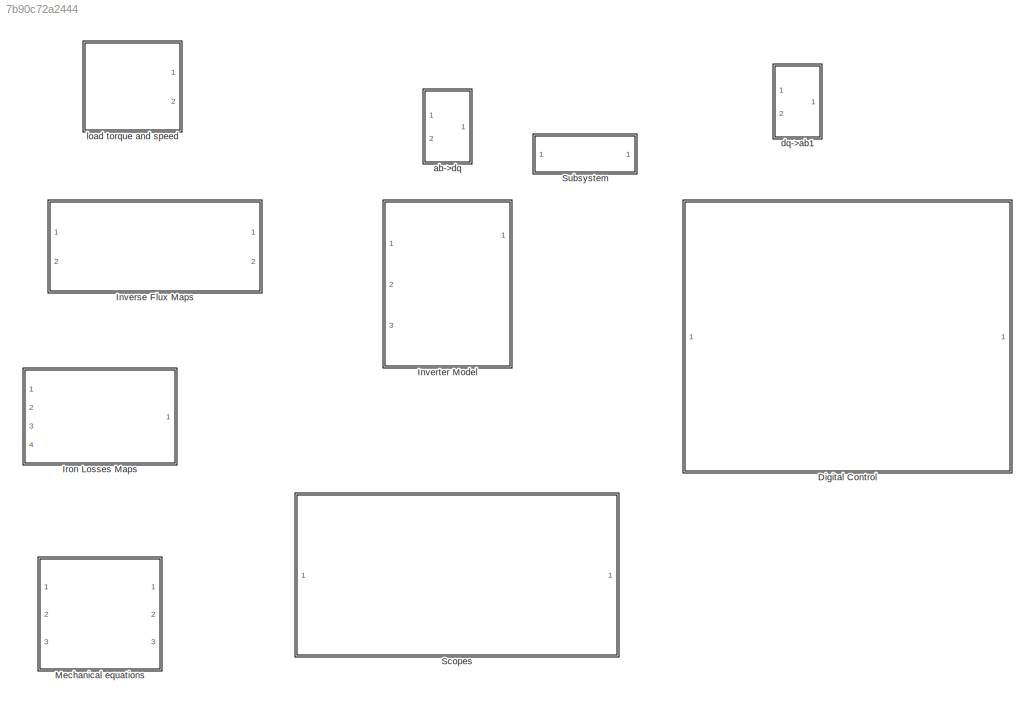
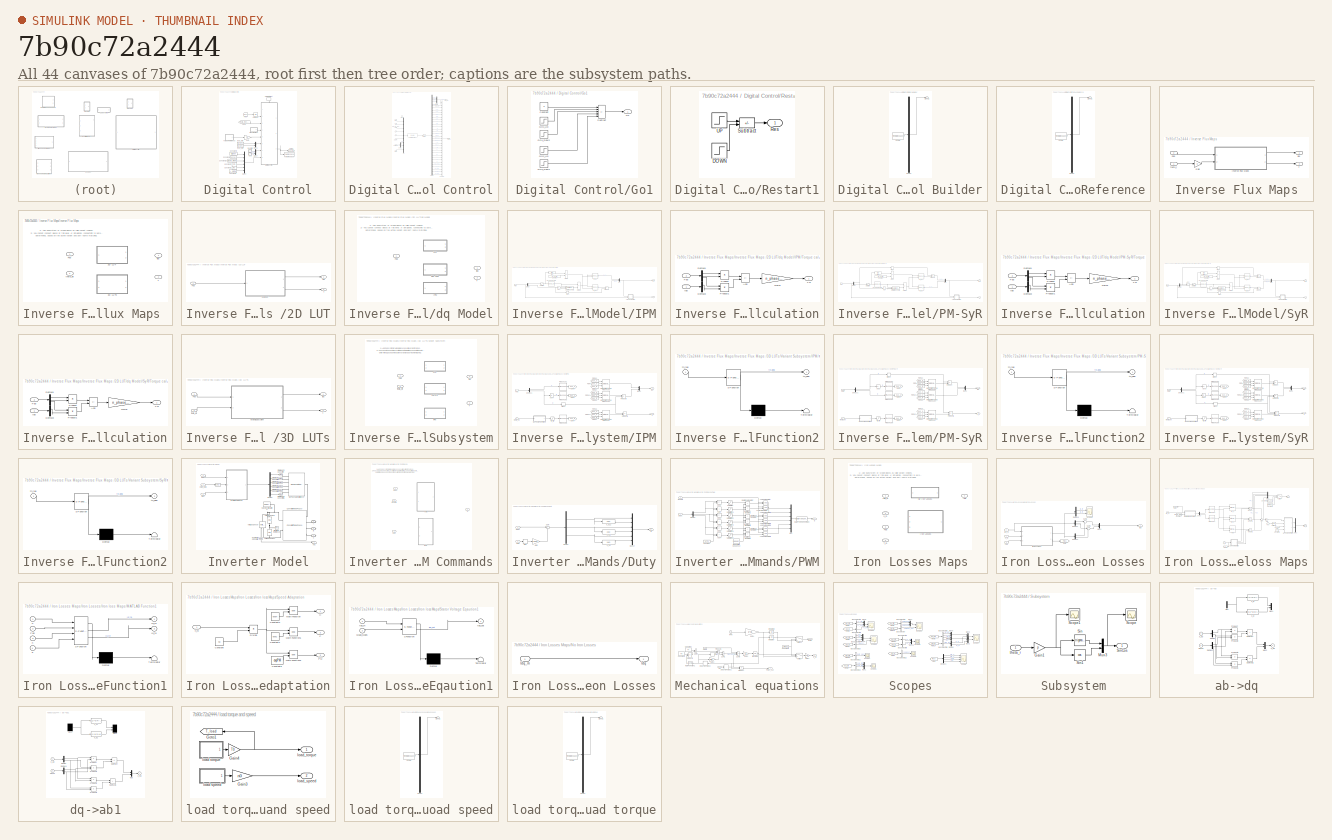
[diagram: thumbnail index - all 44 canvases of the model, root first then tree order]
MODEL slx_7b90c72a2444
KIND model
CONFIG AbsTol = auto
CONFIG EnableMultiTasking = off
CONFIG FixedStep = auto
CONFIG MaxStep = auto
CONFIG MinStep = auto
CONFIG RelTol = 1e-3
CONFIG SampleTimeConstraint = Unconstrained
CONFIG SolverName = VariableStepAuto
CONFIG StartTime = 0.0
CONFIG StopTime = 10.0
BLOCK [SubSystem] Digital Control
  Ports = []
BLOCK [Constant] Digital Control/Constant1
  Value = Fm
BLOCK [Constant] Digital Control/Constant10
  Value = Quad_Maps
BLOCK [Constant] Digital Control/Constant2
  Value = th0
BLOCK [Constant] Digital Control/Constant3
  Value = Ctrl_type
BLOCK [Constant] Digital Control/Constant4
  Value = L_sigma
BLOCK [Constant] Digital Control/Constant9
  Value = accel
BLOCK [SubSystem] Digital Control/Digital Control
  Ports = [8, 3, 0, 1]
  TreatAsAtomicUnit = on
BLOCK [BusCreator] Digital Control/Digital Control/Bus Creator
  DisplayOption = bar
  InheritFromInputs = on
  Inputs = 31
  Ports = [31, 1]
BLOCK [Inport] Digital Control/Digital Control/Commands
  Port = 7
BLOCK [S-Function] Digital Control/Digital Control/Control S-Function
  EnableBusSupport = off
  FunctionName = Motor_ctrl
  Ports = [1, 1]
  SFcnIsStateOwnerBlock = off
  SFunctionDeploymentMode = off
BLOCK [Demux] Digital Control/Digital Control/Demux1
  Outputs = 2
  Ports = [1, 2]
BLOCK [Demux] Digital Control/Digital Control/Demux2
  Outputs = 34
  Ports = [1, 34]
BLOCK [Inport] Digital Control/Digital Control/Inputs
  Port = 8
BLOCK [Mux] Digital Control/Digital Control/Mux
  DisplayOption = bar
  Inputs = 9
  Ports = [9, 1]
BLOCK [Mux] Digital Control/Digital Control/Mux1
  DisplayOption = bar
  Inputs = 3
  Ports = [3, 1]
BLOCK [Outport] Digital Control/Digital Control/Outputs
  Port = 3
BLOCK [Inport] Digital Control/Digital Control/T*
  Port = 5
BLOCK [TriggerPort] Digital Control/Digital Control/Trigger
  Ports = []
  VariantControl = (inherit)
BLOCK [UnitDelay] Digital Control/Digital Control/Unit Delay
  HasFrameUpgradeWarning = on
  NameLocation = top
  SampleTime = -1
BLOCK [Outport] Digital Control/Digital Control/duty_abc
BLOCK [Inport] Digital Control/Digital Control/iabcs
BLOCK [Inport] Digital Control/Digital Control/isdq_ref
  Port = 6
BLOCK [Inport] Digital Control/Digital Control/n*
  Port = 4
BLOCK [Outport] Digital Control/Digital Control/pwm_stop
  Port = 2
BLOCK [Inport] Digital Control/Digital Control/theta_mec_meas
  Port = 3
BLOCK [Inport] Digital Control/Digital Control/vdc
  Port = 2
BLOCK [From] Digital Control/From
  GotoTag = vdc1
BLOCK [From] Digital Control/From1
  GotoTag = theta_mec_meas
BLOCK [Gain] Digital Control/Gain
  Gain = T0
BLOCK [SubSystem] Digital Control/Go1
  Ports = [0, 1]
BLOCK [Constant] Digital Control/Go1/Constant
  Value = 0
BLOCK [Step] Digital Control/Go1/GO1_Down
  SampleTime = 0
  Time = 0.03+4*Ts
BLOCK [Step] Digital Control/Go1/GO1_Up
  SampleTime = 0
  Time = 0.03
BLOCK [Step] Digital Control/Go1/GO2_Down
  SampleTime = 0
  Time = 0.1+4*Ts
BLOCK [Step] Digital Control/Go1/GO2_Up
  SampleTime = 0
  Time = 0.1
BLOCK [Outport] Digital Control/Go1/Go
BLOCK [Sum] Digital Control/Go1/Subtract
  IconShape = rectangular
  Inputs = ++-+-
  Ports = [5, 1]
BLOCK [Goto] Digital Control/Goto5
  GotoTag = Out_Ctrl
  TagVisibility = global
BLOCK [Mux] Digital Control/Mux1
  DisplayOption = bar
  Inputs = 2
  Ports = [2, 1]
BLOCK [Mux] Digital Control/Mux7
  DisplayOption = bar
  Inputs = 2
  Ports = [2, 1]
BLOCK [Mux] Digital Control/Mux9
  DisplayOption = bar
  Inputs = 6
  Ports = [6, 1]
BLOCK [DiscretePulseGenerator] Digital Control/PWM Interrupt
  NameLocation = left
  Period = Ts
  Ports = [0, 1]
  PulseType = Time based
  PulseWidth = 50
BLOCK [SubSystem] Digital Control/Restart1
  Ports = [0, 1]
BLOCK [Step] Digital Control/Restart1/DOWN 
  SampleTime = 0
  Time = 10e-3+4*Ts
BLOCK [Outport] Digital Control/Restart1/Res
BLOCK [Sum] Digital Control/Restart1/Subtract
  IconShape = rectangular
  Inputs = +-
  Ports = [2, 1]
BLOCK [Step] Digital Control/Restart1/UP 
  SampleTime = 0
  Time = 10e-3
BLOCK [SubSystem] Digital Control/Signal Builder
  ClipboardFcn = sigbuilder_block('clipboard');
  CloseFcn = sigbuilder_block('close');
  ContinueFcn = sigbuilder_block('continue');
  CopyFcn = sigbuilder_block('copy');
  DeleteFcn = sigbuilder_block('delete');
  LoadFcn = sigbuilder_block('load');
  MaskHideContents = on
  ModelCloseFcn = sigbuilder_block('modelClose');
  NameChangeFcn = sigbuilder_block('namechange');
  OpenFcn = sigbuilder_block('open',[163.8 121.8 550.2 399.6 ]);
  PauseFcn = sigbuilder_block('pause');
  Ports = [0, 1]
  PreSaveFcn = sigbuilder_block('preSave');
  StartFcn = sigbuilder_block('start');
  StopFcn = sigbuilder_block('stop');
  Tag = STV Subsys
BLOCK [Demux] Digital Control/Signal Builder/Demux
  DisplayOption = none
  Outputs = 1
  Ports = [1, 1]
  Tag = STV Demux
BLOCK [FromWorkspace] Digital Control/Signal Builder/FromWs
  Tag = STV FromWs
  VariableName = tuvar
BLOCK [Outport] Digital Control/Signal Builder/Signal 1
  Tag = STV Outport
BLOCK [ToWorkspace] Digital Control/To Workspace
  FixptAsFi = on
  MaxDataPoints = inf
  Ports = [1]
  SampleTime = -1
  SaveFormat = Timeseries
  VariableName = Outputs
BLOCK [SubSystem] Digital Control/Torque Reference
  ClipboardFcn = sigbuilder_block('clipboard');
  CloseFcn = sigbuilder_block('close');
  ContinueFcn = sigbuilder_block('continue');
  CopyFcn = sigbuilder_block('copy');
  DeleteFcn = sigbuilder_block('delete');
  LoadFcn = sigbuilder_block('load');
  MaskHideContents = on
  ModelCloseFcn = sigbuilder_block('modelClose');
  NameChangeFcn = sigbuilder_block('namechange');
  NameLocation = top
  OpenFcn = sigbuilder_block('open',[596.4 129.6 550.2 321.6 ]);
  PauseFcn = sigbuilder_block('pause');
  Ports = [0, 1]
  PreSaveFcn = sigbuilder_block('preSave');
  StartFcn = sigbuilder_block('start');
  StopFcn = sigbuilder_block('stop');
  Tag = STV Subsys
BLOCK [Demux] Digital Control/Torque Reference/Demux
  DisplayOption = none
  Outputs = 1
  Ports = [1, 1]
  Tag = STV Demux
BLOCK [FromWorkspace] Digital Control/Torque Reference/FromWs
  Tag = STV FromWs
  VariableName = tuvar
BLOCK [Outport] Digital Control/Torque Reference/Signal 1
  Tag = STV Outport
BLOCK [UnitDelay] Digital Control/Unit Delay
  HasFrameUpgradeWarning = on
  SampleTime = -1
BLOCK [Constant] Digital Control/isdq_ref.d
  NameLocation = top
  Value = id_MTPA
BLOCK [Constant] Digital Control/isdq_ref.q
  Value = iq_MTPA
BLOCK [SubSystem] Inverse Flux Maps
  Ports = [2, 2]
BLOCK [Inport] Inverse Flux Maps/Fdq
  Port = 2
BLOCK [Gain] Inverse Flux Maps/Gain
  Gain = p
BLOCK [SubSystem] Inverse Flux Maps/Inverse Flux Maps 
  Ports = [2, 2]
  Variant = on
BLOCK [SubSystem] Inverse Flux Maps/Inverse Flux Maps /2D LUT
  Ports = [1, 2]
  VariantControl = FMapsModel==1
BLOCK [Inport] Inverse Flux Maps/Inverse Flux Maps /2D LUT/Fdq
BLOCK [Outport] Inverse Flux Maps/Inverse Flux Maps /2D LUT/T
  Port = 2
BLOCK [SubSystem] Inverse Flux Maps/Inverse Flux Maps /2D LUT/dq Model
  Ports = [1, 2]
  Variant = on
BLOCK [Inport] Inverse Flux Maps/Inverse Flux Maps /2D LUT/dq Model/Fdq
BLOCK [SubSystem] Inverse Flux Maps/Inverse Flux Maps /2D LUT/dq Model/IPM
  Ports = [1, 2]
  VariantControl = Quad_Maps==2
BLOCK [Lookup_n-D] Inverse Flux Maps/Inverse Flux Maps /2D LUT/dq Model/IPM/1-D Lookup Table
  BreakpointsForDimension1 = fD_vct_ref
  InputPortMap = u0
  InternalRulePriority = Speed
  NumberOfTableDimensions = 1
  Ports = [1, 1]
  RndMeth = Simplest
  Table = fQ_vct_max
BLOCK [Abs] Inverse Flux Maps/Inverse Flux Maps /2D LUT/dq Model/IPM/Abs1
  SaturateOnIntegerOverflow = off
BLOCK [Bias] Inverse Flux Maps/Inverse Flux Maps /2D LUT/dq Model/IPM/Bias
  Bias = -fD_vct_ref(1)
  SaturateOnIntegerOverflow = off
BLOCK [Constant] Inverse Flux Maps/Inverse Flux Maps /2D LUT/dq Model/IPM/Constant
  Value = fD_vct_ref(end)-fD_vct_ref(1)
BLOCK [Demux] Inverse Flux Maps/Inverse Flux Maps /2D LUT/dq Model/IPM/Demux
  Outputs = 2
  Ports = [1, 2]
BLOCK [Product] Inverse Flux Maps/Inverse Flux Maps /2D LUT/dq Model/IPM/Divide
  Inputs = */
  Ports = [2, 1]
BLOCK [Product] Inverse Flux Maps/Inverse Flux Maps /2D LUT/dq Model/IPM/Divide1
  Inputs = /*
  Ports = [2, 1]
BLOCK [Inport] Inverse Flux Maps/Inverse Flux Maps /2D LUT/dq Model/IPM/Fdq
BLOCK [Lookup_n-D] Inverse Flux Maps/Inverse Flux Maps /2D LUT/dq Model/IPM/Id_pu
  BreakpointsForDimension1 = fQ_pu_norm(:,1)
  BreakpointsForDimension2 = fD_pu_norm(1,:)
  InputPortMap = u0,u1
  InternalRulePriority = Speed
  Ports = [2, 1]
  RndMeth = Simplest
  Table = iD_pu_norm
BLOCK [Lookup_n-D] Inverse Flux Maps/Inverse Flux Maps /2D LUT/dq Model/IPM/Iq_pu
  BreakpointsForDimension1 = fQ_pu_norm(:,1)
  BreakpointsForDimension2 = fD_pu_norm(1,:)
  InputPortMap = u0,u1
  InternalRulePriority = Speed
  Ports = [2, 1]
  RndMeth = Simplest
  Table = iQ_pu_norm
BLOCK [Mux] Inverse Flux Maps/Inverse Flux Maps /2D LUT/dq Model/IPM/Mux
  DisplayOption = bar
  Inputs = 2
  Ports = [2, 1]
BLOCK [Product] Inverse Flux Maps/Inverse Flux Maps /2D LUT/dq Model/IPM/Product1
  Ports = [2, 1]
BLOCK [Saturate] Inverse Flux Maps/Inverse Flux Maps /2D LUT/dq Model/IPM/Saturation
  LowerLimit = fD_vct_ref(1)
  UpperLimit = fD_vct_ref(end)
BLOCK [Reference] Inverse Flux Maps/Inverse Flux Maps /2D LUT/dq Model/IPM/Saturation Dynamic  REF=simulink/Discontinuities/Saturation
Dynamic
  Ports = [3, 1]
  SourceBlock = simulink/Discontinuities/Saturation\nDynamic
  SourceType = Saturation Dynamic
BLOCK [Signum] Inverse Flux Maps/Inverse Flux Maps /2D LUT/dq Model/IPM/Sign1
BLOCK [Outport] Inverse Flux Maps/Inverse Flux Maps /2D LUT/dq Model/IPM/T
  Port = 2
BLOCK [SubSystem] Inverse Flux Maps/Inverse Flux Maps /2D LUT/dq Model/IPM/Torque calculation
  Ports = [2, 1]
BLOCK [Sum] Inverse Flux Maps/Inverse Flux Maps /2D LUT/dq Model/IPM/Torque calculation/Add
  IconShape = rectangular
  Inputs = +-
  Ports = [2, 1]
BLOCK [Demux] Inverse Flux Maps/Inverse Flux Maps /2D LUT/dq Model/IPM/Torque calculation/Demux1
  Outputs = 2
  Ports = [1, 2]
BLOCK [Demux] Inverse Flux Maps/Inverse Flux Maps /2D LUT/dq Model/IPM/Torque calculation/Demux3
  Outputs = 2
  Ports = [1, 2]
BLOCK [Inport] Inverse Flux Maps/Inverse Flux Maps /2D LUT/dq Model/IPM/Torque calculation/Fdq
  Port = 2
BLOCK [Gain] Inverse Flux Maps/Inverse Flux Maps /2D LUT/dq Model/IPM/Torque calculation/Gain2
  Gain = n_phase*0.5*p
BLOCK [Inport] Inverse Flux Maps/Inverse Flux Maps /2D LUT/dq Model/IPM/Torque calculation/Idq
BLOCK [Product] Inverse Flux Maps/Inverse Flux Maps /2D LUT/dq Model/IPM/Torque calculation/Product
  Ports = [2, 1]
BLOCK [Product] Inverse Flux Maps/Inverse Flux Maps /2D LUT/dq Model/IPM/Torque calculation/Product1
  Ports = [2, 1]
BLOCK [Outport] Inverse Flux Maps/Inverse Flux Maps /2D LUT/dq Model/IPM/Torque calculation/Tm
BLOCK [Outport] Inverse Flux Maps/Inverse Flux Maps /2D LUT/dq Model/IPM/idq
BLOCK [SubSystem] Inverse Flux Maps/Inverse Flux Maps /2D LUT/dq Model/PM-SyR
  Ports = [1, 2]
  VariantControl = Quad_Maps==1
BLOCK [Lookup_n-D] Inverse Flux Maps/Inverse Flux Maps /2D LUT/dq Model/PM-SyR/1-D Lookup Table
  BreakpointsForDimension1 = fQ_vct_ref
  InputPortMap = u0
  InternalRulePriority = Speed
  NumberOfTableDimensions = 1
  Ports = [1, 1]
  RndMeth = Simplest
  Table = fD_vct_max
BLOCK [Abs] Inverse Flux Maps/Inverse Flux Maps /2D LUT/dq Model/PM-SyR/Abs
  SaturateOnIntegerOverflow = off
BLOCK [Bias] Inverse Flux Maps/Inverse Flux Maps /2D LUT/dq Model/PM-SyR/Bias
  Bias = -fQ_vct_ref(1)
  SaturateOnIntegerOverflow = off
BLOCK [Constant] Inverse Flux Maps/Inverse Flux Maps /2D LUT/dq Model/PM-SyR/Constant
  Value = fQ_vct_ref(end)-fQ_vct_ref(1)
BLOCK [Demux] Inverse Flux Maps/Inverse Flux Maps /2D LUT/dq Model/PM-SyR/Demux
  Outputs = 2
  Ports = [1, 2]
BLOCK [Product] Inverse Flux Maps/Inverse Flux Maps /2D LUT/dq Model/PM-SyR/Divide
  Inputs = */
  Ports = [2, 1]
BLOCK [Product] Inverse Flux Maps/Inverse Flux Maps /2D LUT/dq Model/PM-SyR/Divide1
  Inputs = /*
  Ports = [2, 1]
BLOCK [Inport] Inverse Flux Maps/Inverse Flux Maps /2D LUT/dq Model/PM-SyR/Fdq
BLOCK [Lookup_n-D] Inverse Flux Maps/Inverse Flux Maps /2D LUT/dq Model/PM-SyR/Id_pu
  BreakpointsForDimension1 = fQ_pu_norm(:,1)
  BreakpointsForDimension2 = fD_pu_norm(1,:)
  InputPortMap = u0,u1
  InternalRulePriority = Speed
  Ports = [2, 1]
  RndMeth = Simplest
  Table = iD_pu_norm
BLOCK [Lookup_n-D] Inverse Flux Maps/Inverse Flux Maps /2D LUT/dq Model/PM-SyR/Iq_pu
  BreakpointsForDimension1 = fQ_pu_norm(:,1)
  BreakpointsForDimension2 = fD_pu_norm(1,:)
  InputPortMap = u0,u1
  InternalRulePriority = Speed
  Ports = [2, 1]
  RndMeth = Simplest
  Table = iQ_pu_norm
BLOCK [Mux] Inverse Flux Maps/Inverse Flux Maps /2D LUT/dq Model/PM-SyR/Mux
  DisplayOption = bar
  Inputs = 2
  Ports = [2, 1]
BLOCK [Product] Inverse Flux Maps/Inverse Flux Maps /2D LUT/dq Model/PM-SyR/Product2
  Ports = [2, 1]
BLOCK [Saturate] Inverse Flux Maps/Inverse Flux Maps /2D LUT/dq Model/PM-SyR/Saturation
  LowerLimit = fQ_vct_ref(1)
  UpperLimit = fQ_vct_ref(end)
BLOCK [Reference] Inverse Flux Maps/Inverse Flux Maps /2D LUT/dq Model/PM-SyR/Saturation Dynamic  REF=simulink/Discontinuities/Saturation
Dynamic
  Ports = [3, 1]
  SourceBlock = simulink/Discontinuities/Saturation\nDynamic
  SourceType = Saturation Dynamic
BLOCK [Signum] Inverse Flux Maps/Inverse Flux Maps /2D LUT/dq Model/PM-SyR/Sign2
BLOCK [Outport] Inverse Flux Maps/Inverse Flux Maps /2D LUT/dq Model/PM-SyR/T
  Port = 2
BLOCK [SubSystem] Inverse Flux Maps/Inverse Flux Maps /2D LUT/dq Model/PM-SyR/Torque calculation
  Ports = [2, 1]
BLOCK [Sum] Inverse Flux Maps/Inverse Flux Maps /2D LUT/dq Model/PM-SyR/Torque calculation/Add
  IconShape = rectangular
  Inputs = +-
  Ports = [2, 1]
BLOCK [Demux] Inverse Flux Maps/Inverse Flux Maps /2D LUT/dq Model/PM-SyR/Torque calculation/Demux1
  Outputs = 2
  Ports = [1, 2]
BLOCK [Demux] Inverse Flux Maps/Inverse Flux Maps /2D LUT/dq Model/PM-SyR/Torque calculation/Demux3
  Outputs = 2
  Ports = [1, 2]
BLOCK [Inport] Inverse Flux Maps/Inverse Flux Maps /2D LUT/dq Model/PM-SyR/Torque calculation/Fdq
  Port = 2
BLOCK [Gain] Inverse Flux Maps/Inverse Flux Maps /2D LUT/dq Model/PM-SyR/Torque calculation/Gain2
  Gain = n_phase*0.5*p
BLOCK [Inport] Inverse Flux Maps/Inverse Flux Maps /2D LUT/dq Model/PM-SyR/Torque calculation/Idq
BLOCK [Product] Inverse Flux Maps/Inverse Flux Maps /2D LUT/dq Model/PM-SyR/Torque calculation/Product
  Ports = [2, 1]
BLOCK [Product] Inverse Flux Maps/Inverse Flux Maps /2D LUT/dq Model/PM-SyR/Torque calculation/Product1
  Ports = [2, 1]
BLOCK [Outport] Inverse Flux Maps/Inverse Flux Maps /2D LUT/dq Model/PM-SyR/Torque calculation/Tm
BLOCK [Outport] Inverse Flux Maps/Inverse Flux Maps /2D LUT/dq Model/PM-SyR/idq
BLOCK [SubSystem] Inverse Flux Maps/Inverse Flux Maps /2D LUT/dq Model/SyR
  Ports = [1, 2]
  VariantControl = Quad_Maps==0
BLOCK [Lookup_n-D] Inverse Flux Maps/Inverse Flux Maps /2D LUT/dq Model/SyR/1-D Lookup Table
  BreakpointsForDimension1 = fD_vct_ref
  InputPortMap = u0
  InternalRulePriority = Speed
  NumberOfTableDimensions = 1
  Ports = [1, 1]
  RndMeth = Simplest
  Table = fQ_vct_max
BLOCK [Abs] Inverse Flux Maps/Inverse Flux Maps /2D LUT/dq Model/SyR/Abs1
  SaturateOnIntegerOverflow = off
BLOCK [Abs] Inverse Flux Maps/Inverse Flux Maps /2D LUT/dq Model/SyR/Abs2
  SaturateOnIntegerOverflow = off
BLOCK [Bias] Inverse Flux Maps/Inverse Flux Maps /2D LUT/dq Model/SyR/Bias
  Bias = -fD_vct_ref(1)
  SaturateOnIntegerOverflow = off
BLOCK [Constant] Inverse Flux Maps/Inverse Flux Maps /2D LUT/dq Model/SyR/Constant
  Value = fD_vct_ref(end)-fD_vct_ref(1)
BLOCK [Demux] Inverse Flux Maps/Inverse Flux Maps /2D LUT/dq Model/SyR/Demux
  Outputs = 2
  Ports = [1, 2]
BLOCK [Product] Inverse Flux Maps/Inverse Flux Maps /2D LUT/dq Model/SyR/Divide
  Inputs = */
  Ports = [2, 1]
BLOCK [Product] Inverse Flux Maps/Inverse Flux Maps /2D LUT/dq Model/SyR/Divide1
  Inputs = /*
  Ports = [2, 1]
BLOCK [Inport] Inverse Flux Maps/Inverse Flux Maps /2D LUT/dq Model/SyR/Fdq
BLOCK [Lookup_n-D] Inverse Flux Maps/Inverse Flux Maps /2D LUT/dq Model/SyR/Id_pu
  BreakpointsForDimension1 = fQ_pu_norm(:,1)
  BreakpointsForDimension2 = fD_pu_norm(1,:)
  InputPortMap = u0,u1
  InternalRulePriority = Speed
  Ports = [2, 1]
  RndMeth = Simplest
  Table = iD_pu_norm
BLOCK [Lookup_n-D] Inverse Flux Maps/Inverse Flux Maps /2D LUT/dq Model/SyR/Iq_pu
  BreakpointsForDimension1 = fQ_pu_norm(:,1)
  BreakpointsForDimension2 = fD_pu_norm(1,:)
  InputPortMap = u0,u1
  InternalRulePriority = Speed
  Ports = [2, 1]
  RndMeth = Simplest
  Table = iQ_pu_norm
BLOCK [Mux] Inverse Flux Maps/Inverse Flux Maps /2D LUT/dq Model/SyR/Mux
  DisplayOption = bar
  Inputs = 2
  Ports = [2, 1]
BLOCK [Product] Inverse Flux Maps/Inverse Flux Maps /2D LUT/dq Model/SyR/Product1
  Ports = [2, 1]
BLOCK [Product] Inverse Flux Maps/Inverse Flux Maps /2D LUT/dq Model/SyR/Product2
  Ports = [2, 1]
BLOCK [Saturate] Inverse Flux Maps/Inverse Flux Maps /2D LUT/dq Model/SyR/Saturation
  LowerLimit = fD_vct_ref(1)
  UpperLimit = fD_vct_ref(end)
BLOCK [Reference] Inverse Flux Maps/Inverse Flux Maps /2D LUT/dq Model/SyR/Saturation Dynamic  REF=simulink/Discontinuities/Saturation
Dynamic
  Ports = [3, 1]
  SourceBlock = simulink/Discontinuities/Saturation\nDynamic
  SourceType = Saturation Dynamic
BLOCK [Signum] Inverse Flux Maps/Inverse Flux Maps /2D LUT/dq Model/SyR/Sign1
BLOCK [Signum] Inverse Flux Maps/Inverse Flux Maps /2D LUT/dq Model/SyR/Sign2
BLOCK [Outport] Inverse Flux Maps/Inverse Flux Maps /2D LUT/dq Model/SyR/T
  Port = 2
BLOCK [SubSystem] Inverse Flux Maps/Inverse Flux Maps /2D LUT/dq Model/SyR/Torque calculation
  Ports = [2, 1]
BLOCK [Sum] Inverse Flux Maps/Inverse Flux Maps /2D LUT/dq Model/SyR/Torque calculation/Add
  IconShape = rectangular
  Inputs = +-
  Ports = [2, 1]
BLOCK [Demux] Inverse Flux Maps/Inverse Flux Maps /2D LUT/dq Model/SyR/Torque calculation/Demux1
  Outputs = 2
  Ports = [1, 2]
BLOCK [Demux] Inverse Flux Maps/Inverse Flux Maps /2D LUT/dq Model/SyR/Torque calculation/Demux3
  Outputs = 2
  Ports = [1, 2]
BLOCK [Inport] Inverse Flux Maps/Inverse Flux Maps /2D LUT/dq Model/SyR/Torque calculation/Fdq
  Port = 2
BLOCK [Gain] Inverse Flux Maps/Inverse Flux Maps /2D LUT/dq Model/SyR/Torque calculation/Gain2
  Gain = n_phase*0.5*p
BLOCK [Inport] Inverse Flux Maps/Inverse Flux Maps /2D LUT/dq Model/SyR/Torque calculation/Idq
BLOCK [Product] Inverse Flux Maps/Inverse Flux Maps /2D LUT/dq Model/SyR/Torque calculation/Product
  Ports = [2, 1]
BLOCK [Product] Inverse Flux Maps/Inverse Flux Maps /2D LUT/dq Model/SyR/Torque calculation/Product1
  Ports = [2, 1]
BLOCK [Outport] Inverse Flux Maps/Inverse Flux Maps /2D LUT/dq Model/SyR/Torque calculation/Tm
BLOCK [Outport] Inverse Flux Maps/Inverse Flux Maps /2D LUT/dq Model/SyR/idq
BLOCK [Outport] Inverse Flux Maps/Inverse Flux Maps /2D LUT/dq Model/T
  Port = 2
BLOCK [Outport] Inverse Flux Maps/Inverse Flux Maps /2D LUT/dq Model/idq
BLOCK [Outport] Inverse Flux Maps/Inverse Flux Maps /2D LUT/idq
BLOCK [SubSystem] Inverse Flux Maps/Inverse Flux Maps /3D LUTs
  Ports = [2, 2]
  VariantControl = FMapsModel==-1
BLOCK [Inport] Inverse Flux Maps/Inverse Flux Maps /3D LUTs/Fdq
BLOCK [Outport] Inverse Flux Maps/Inverse Flux Maps /3D LUTs/T
  Port = 2
BLOCK [SubSystem] Inverse Flux Maps/Inverse Flux Maps /3D LUTs/Variant Subsystem
  Ports = [2, 2]
  Variant = on
BLOCK [Inport] Inverse Flux Maps/Inverse Flux Maps /3D LUTs/Variant Subsystem/Fdq
BLOCK [SubSystem] Inverse Flux Maps/Inverse Flux Maps /3D LUTs/Variant Subsystem/IPM
  Ports = [2, 2]
  VariantControl = Quad_Maps==2
BLOCK [Abs] Inverse Flux Maps/Inverse Flux Maps /3D LUTs/Variant Subsystem/IPM/Abs4
  SaturateOnIntegerOverflow = off
BLOCK [Demux] Inverse Flux Maps/Inverse Flux Maps /3D LUTs/Variant Subsystem/IPM/Demux1
  Outputs = 2
  Ports = [1, 2]
BLOCK [Inport] Inverse Flux Maps/Inverse Flux Maps /3D LUTs/Variant Subsystem/IPM/Fdq
BLOCK [From] Inverse Flux Maps/Inverse Flux Maps /3D LUTs/Variant Subsystem/IPM/From
  GotoTag = bus_d
BLOCK [From] Inverse Flux Maps/Inverse Flux Maps /3D LUTs/Variant Subsystem/IPM/From10
  GotoTag = bus_d
BLOCK [From] Inverse Flux Maps/Inverse Flux Maps /3D LUTs/Variant Subsystem/IPM/From11
  GotoTag = bus_th
BLOCK [From] Inverse Flux Maps/Inverse Flux Maps /3D LUTs/Variant Subsystem/IPM/From12
  GotoTag = bus_d
BLOCK [From] Inverse Flux Maps/Inverse Flux Maps /3D LUTs/Variant Subsystem/IPM/From13
  GotoTag = bus_q
BLOCK [From] Inverse Flux Maps/Inverse Flux Maps /3D LUTs/Variant Subsystem/IPM/From14
  GotoTag = bus_q
BLOCK [From] Inverse Flux Maps/Inverse Flux Maps /3D LUTs/Variant Subsystem/IPM/From15
  GotoTag = bus_q
BLOCK [From] Inverse Flux Maps/Inverse Flux Maps /3D LUTs/Variant Subsystem/IPM/From16
  GotoTag = bus_th
BLOCK [From] Inverse Flux Maps/Inverse Flux Maps /3D LUTs/Variant Subsystem/IPM/From17
  GotoTag = bus_th
BLOCK [Goto] Inverse Flux Maps/Inverse Flux Maps /3D LUTs/Variant Subsystem/IPM/Goto3
  GotoTag = bus_q
BLOCK [Goto] Inverse Flux Maps/Inverse Flux Maps /3D LUTs/Variant Subsystem/IPM/Goto4
  GotoTag = bus_th
BLOCK [Goto] Inverse Flux Maps/Inverse Flux Maps /3D LUTs/Variant Subsystem/IPM/Goto6
  GotoTag = bus_d
BLOCK [Interpolation_n-D] Inverse Flux Maps/Inverse Flux Maps /3D LUTs/Variant Subsystem/IPM/Interpolation Using Prelookup
  InputPortMap = u0,u1,u2
  IntermediateResultsDataTypeStr = Inherit: Inherit via internal rule
  InternalRulePriority = Speed
  LookupTableObject = T_th
  NumberOfTableDimensions = 3
  Ports = [3, 1]
  RequireIndexFractionAsBus = on
  Table = T_dqt
BLOCK [Interpolation_n-D] Inverse Flux Maps/Inverse Flux Maps /3D LUTs/Variant Subsystem/IPM/Interpolation Using Prelookup3
  InputPortMap = u0,u1,u2
  IntermediateResultsDataTypeStr = Inherit: Inherit via internal rule
  InternalRulePriority = Speed
  NumberOfTableDimensions = 3
  Ports = [3, 1]
  RequireIndexFractionAsBus = on
  Table = Id_dqt
BLOCK [Interpolation_n-D] Inverse Flux Maps/Inverse Flux Maps /3D LUTs/Variant Subsystem/IPM/Interpolation Using Prelookup4
  InputPortMap = u0,u1,u2
  IntermediateResultsDataTypeStr = Inherit: Inherit via internal rule
  InternalRulePriority = Speed
  NumberOfTableDimensions = 3
  Ports = [3, 1]
  RequireIndexFractionAsBus = on
  Table = Iq_dqt
BLOCK [SubSystem] Inverse Flux Maps/Inverse Flux Maps /3D LUTs/Variant Subsystem/IPM/MATLAB Function2
  ErrorFcn = Stateflow.Translate.translate
  PermitHierarchicalResolution = ExplicitOnly
  Ports = [1, 1]
  SFBlockType = MATLAB Function
  TreatAsAtomicUnit = on
BLOCK [Demux] Inverse Flux Maps/Inverse Flux Maps /3D LUTs/Variant Subsystem/IPM/MATLAB Function2/ Demux 
  Outputs = 1
  Ports = [1, 1]
BLOCK [S-Function] Inverse Flux Maps/Inverse Flux Maps /3D LUTs/Variant Subsystem/IPM/MATLAB Function2/ SFunction 
  EnableBusSupport = off
  FunctionName = sf_sfun
  PortCounts = [1 2]
  Ports = [1, 2]
  SFcnIsStateOwnerBlock = off
  SFunctionDeploymentMode = off
  Tag = Stateflow S-Function 3
BLOCK [Terminator] Inverse Flux Maps/Inverse Flux Maps /3D LUTs/Variant Subsystem/IPM/MATLAB Function2/ Terminator 
BLOCK [Outport] Inverse Flux Maps/Inverse Flux Maps /3D LUTs/Variant Subsystem/IPM/MATLAB Function2/th_deg
BLOCK [Inport] Inverse Flux Maps/Inverse Flux Maps /3D LUTs/Variant Subsystem/IPM/MATLAB Function2/th_rad
BLOCK [Mux] Inverse Flux Maps/Inverse Flux Maps /3D LUTs/Variant Subsystem/IPM/Mux1
  DisplayOption = bar
  Inputs = 2
  Ports = [2, 1]
BLOCK [PreLookup] Inverse Flux Maps/Inverse Flux Maps /3D LUTs/Variant Subsystem/IPM/Prelookup1
  BreakpointsData = Fd_v
  ExtrapMethod = Linear
  InputPortMap = u0
  OutputSelection = Index and fraction as bus
  Ports = [1, 1]
BLOCK [PreLookup] Inverse Flux Maps/Inverse Flux Maps /3D LUTs/Variant Subsystem/IPM/Prelookup2
  BreakpointsData = Fq_v
  ExtrapMethod = Linear
  InputPortMap = u0
  OutputSelection = Index and fraction as bus
  Ports = [1, 1]
BLOCK [PreLookup] Inverse Flux Maps/Inverse Flux Maps /3D LUTs/Variant Subsystem/IPM/Prelookup6
  BreakpointsData = th_v
  ExtrapMethod = Linear
  InputPortMap = u0
  OutputSelection = Index and fraction as bus
  Ports = [1, 1]
BLOCK [Product] Inverse Flux Maps/Inverse Flux Maps /3D LUTs/Variant Subsystem/IPM/Product5
  Ports = [2, 1]
BLOCK [Product] Inverse Flux Maps/Inverse Flux Maps /3D LUTs/Variant Subsystem/IPM/Product6
  Ports = [2, 1]
BLOCK [Signum] Inverse Flux Maps/Inverse Flux Maps /3D LUTs/Variant Subsystem/IPM/Sign3
BLOCK [Outport] Inverse Flux Maps/Inverse Flux Maps /3D LUTs/Variant Subsystem/IPM/T
  Port = 2
BLOCK [Outport] Inverse Flux Maps/Inverse Flux Maps /3D LUTs/Variant Subsystem/IPM/idq
BLOCK [Saturate] Inverse Flux Maps/Inverse Flux Maps /3D LUTs/Variant Subsystem/IPM/th_lim
  LowerLimit = th_min
  UpperLimit = th_max
  ZeroCross = off
BLOCK [Inport] Inverse Flux Maps/Inverse Flux Maps /3D LUTs/Variant Subsystem/IPM/theta_elt
  NameLocation = left
  Port = 2
BLOCK [SubSystem] Inverse Flux Maps/Inverse Flux Maps /3D LUTs/Variant Subsystem/PM-SyR
  Ports = [2, 2]
  VariantControl = Quad_Maps==1
BLOCK [Abs] Inverse Flux Maps/Inverse Flux Maps /3D LUTs/Variant Subsystem/PM-SyR/Abs3
  SaturateOnIntegerOverflow = off
BLOCK [Demux] Inverse Flux Maps/Inverse Flux Maps /3D LUTs/Variant Subsystem/PM-SyR/Demux1
  Outputs = 2
  Ports = [1, 2]
BLOCK [Inport] Inverse Flux Maps/Inverse Flux Maps /3D LUTs/Variant Subsystem/PM-SyR/Fdq
BLOCK [From] Inverse Flux Maps/Inverse Flux Maps /3D LUTs/Variant Subsystem/PM-SyR/From
  GotoTag = bus_d
BLOCK [From] Inverse Flux Maps/Inverse Flux Maps /3D LUTs/Variant Subsystem/PM-SyR/From10
  GotoTag = bus_d
BLOCK [From] Inverse Flux Maps/Inverse Flux Maps /3D LUTs/Variant Subsystem/PM-SyR/From11
  GotoTag = bus_th
BLOCK [From] Inverse Flux Maps/Inverse Flux Maps /3D LUTs/Variant Subsystem/PM-SyR/From12
  GotoTag = bus_d
BLOCK [From] Inverse Flux Maps/Inverse Flux Maps /3D LUTs/Variant Subsystem/PM-SyR/From13
  GotoTag = bus_q
BLOCK [From] Inverse Flux Maps/Inverse Flux Maps /3D LUTs/Variant Subsystem/PM-SyR/From14
  GotoTag = bus_q
BLOCK [From] Inverse Flux Maps/Inverse Flux Maps /3D LUTs/Variant Subsystem/PM-SyR/From15
  GotoTag = bus_q
BLOCK [From] Inverse Flux Maps/Inverse Flux Maps /3D LUTs/Variant Subsystem/PM-SyR/From16
  GotoTag = bus_th
BLOCK [From] Inverse Flux Maps/Inverse Flux Maps /3D LUTs/Variant Subsystem/PM-SyR/From17
  GotoTag = bus_th
BLOCK [Goto] Inverse Flux Maps/Inverse Flux Maps /3D LUTs/Variant Subsystem/PM-SyR/Goto3
  GotoTag = bus_q
BLOCK [Goto] Inverse Flux Maps/Inverse Flux Maps /3D LUTs/Variant Subsystem/PM-SyR/Goto4
  GotoTag = bus_th
BLOCK [Goto] Inverse Flux Maps/Inverse Flux Maps /3D LUTs/Variant Subsystem/PM-SyR/Goto6
  GotoTag = bus_d
BLOCK [Interpolation_n-D] Inverse Flux Maps/Inverse Flux Maps /3D LUTs/Variant Subsystem/PM-SyR/Interpolation Using Prelookup
  InputPortMap = u0,u1,u2
  IntermediateResultsDataTypeStr = Inherit: Inherit via internal rule
  InternalRulePriority = Speed
  LookupTableObject = T_th
  NumberOfTableDimensions = 3
  Ports = [3, 1]
  RequireIndexFractionAsBus = on
  Table = T_dqt
BLOCK [Interpolation_n-D] Inverse Flux Maps/Inverse Flux Maps /3D LUTs/Variant Subsystem/PM-SyR/Interpolation Using Prelookup3
  InputPortMap = u0,u1,u2
  IntermediateResultsDataTypeStr = Inherit: Inherit via internal rule
  InternalRulePriority = Speed
  NumberOfTableDimensions = 3
  Ports = [3, 1]
  RequireIndexFractionAsBus = on
  Table = Id_dqt
BLOCK [Interpolation_n-D] Inverse Flux Maps/Inverse Flux Maps /3D LUTs/Variant Subsystem/PM-SyR/Interpolation Using Prelookup4
  InputPortMap = u0,u1,u2
  IntermediateResultsDataTypeStr = Inherit: Inherit via internal rule
  InternalRulePriority = Speed
  NumberOfTableDimensions = 3
  Ports = [3, 1]
  RequireIndexFractionAsBus = on
  Table = Iq_dqt
BLOCK [SubSystem] Inverse Flux Maps/Inverse Flux Maps /3D LUTs/Variant Subsystem/PM-SyR/MATLAB Function2
  ErrorFcn = Stateflow.Translate.translate
  PermitHierarchicalResolution = ExplicitOnly
  Ports = [1, 1]
  SFBlockType = MATLAB Function
  TreatAsAtomicUnit = on
BLOCK [Demux] Inverse Flux Maps/Inverse Flux Maps /3D LUTs/Variant Subsystem/PM-SyR/MATLAB Function2/ Demux 
  Outputs = 1
  Ports = [1, 1]
BLOCK [S-Function] Inverse Flux Maps/Inverse Flux Maps /3D LUTs/Variant Subsystem/PM-SyR/MATLAB Function2/ SFunction 
  EnableBusSupport = off
  FunctionName = sf_sfun
  PortCounts = [1 2]
  Ports = [1, 2]
  SFcnIsStateOwnerBlock = off
  SFunctionDeploymentMode = off
  Tag = Stateflow S-Function 1
BLOCK [Terminator] Inverse Flux Maps/Inverse Flux Maps /3D LUTs/Variant Subsystem/PM-SyR/MATLAB Function2/ Terminator 
BLOCK [Outport] Inverse Flux Maps/Inverse Flux Maps /3D LUTs/Variant Subsystem/PM-SyR/MATLAB Function2/th_deg
BLOCK [Inport] Inverse Flux Maps/Inverse Flux Maps /3D LUTs/Variant Subsystem/PM-SyR/MATLAB Function2/th_rad
BLOCK [Mux] Inverse Flux Maps/Inverse Flux Maps /3D LUTs/Variant Subsystem/PM-SyR/Mux1
  DisplayOption = bar
  Inputs = 2
  Ports = [2, 1]
BLOCK [PreLookup] Inverse Flux Maps/Inverse Flux Maps /3D LUTs/Variant Subsystem/PM-SyR/Prelookup1
  BreakpointsData = Fd_v
  ExtrapMethod = Linear
  InputPortMap = u0
  OutputSelection = Index and fraction as bus
  Ports = [1, 1]
BLOCK [PreLookup] Inverse Flux Maps/Inverse Flux Maps /3D LUTs/Variant Subsystem/PM-SyR/Prelookup2
  BreakpointsData = Fq_v
  ExtrapMethod = Linear
  InputPortMap = u0
  OutputSelection = Index and fraction as bus
  Ports = [1, 1]
BLOCK [PreLookup] Inverse Flux Maps/Inverse Flux Maps /3D LUTs/Variant Subsystem/PM-SyR/Prelookup6
  BreakpointsData = th_v
  ExtrapMethod = Linear
  InputPortMap = u0
  OutputSelection = Index and fraction as bus
  Ports = [1, 1]
BLOCK [Product] Inverse Flux Maps/Inverse Flux Maps /3D LUTs/Variant Subsystem/PM-SyR/Product
  Ports = [2, 1]
BLOCK [Product] Inverse Flux Maps/Inverse Flux Maps /3D LUTs/Variant Subsystem/PM-SyR/Product6
  Ports = [2, 1]
BLOCK [Signum] Inverse Flux Maps/Inverse Flux Maps /3D LUTs/Variant Subsystem/PM-SyR/Sign2
BLOCK [Outport] Inverse Flux Maps/Inverse Flux Maps /3D LUTs/Variant Subsystem/PM-SyR/T
  Port = 2
BLOCK [Outport] Inverse Flux Maps/Inverse Flux Maps /3D LUTs/Variant Subsystem/PM-SyR/idq
BLOCK [Saturate] Inverse Flux Maps/Inverse Flux Maps /3D LUTs/Variant Subsystem/PM-SyR/th_lim
  LowerLimit = th_min
  UpperLimit = th_max
  ZeroCross = off
BLOCK [Inport] Inverse Flux Maps/Inverse Flux Maps /3D LUTs/Variant Subsystem/PM-SyR/theta_elt
  NameLocation = left
  Port = 2
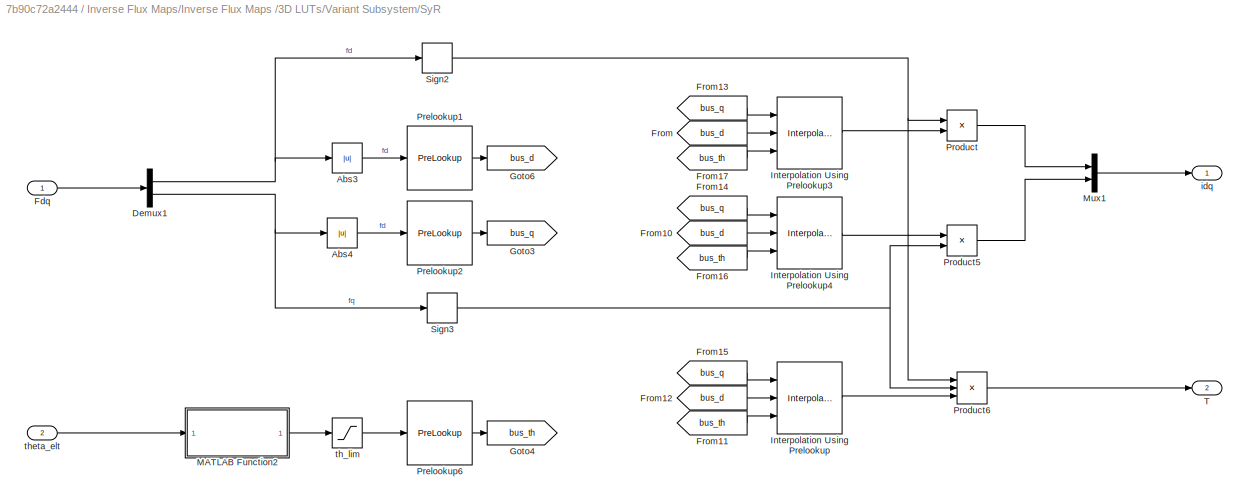
BLOCK [SubSystem] Inverse Flux Maps/Inverse Flux Maps /3D LUTs/Variant Subsystem/SyR
  Ports = [2, 2]
  VariantControl = Quad_Maps==0
BLOCK [Abs] Inverse Flux Maps/Inverse Flux Maps /3D LUTs/Variant Subsystem/SyR/Abs3
  SaturateOnIntegerOverflow = off
BLOCK [Abs] Inverse Flux Maps/Inverse Flux Maps /3D LUTs/Variant Subsystem/SyR/Abs4
  SaturateOnIntegerOverflow = off
BLOCK [Demux] Inverse Flux Maps/Inverse Flux Maps /3D LUTs/Variant Subsystem/SyR/Demux1
  Outputs = 2
  Ports = [1, 2]
BLOCK [Inport] Inverse Flux Maps/Inverse Flux Maps /3D LUTs/Variant Subsystem/SyR/Fdq
BLOCK [From] Inverse Flux Maps/Inverse Flux Maps /3D LUTs/Variant Subsystem/SyR/From
  GotoTag = bus_d
BLOCK [From] Inverse Flux Maps/Inverse Flux Maps /3D LUTs/Variant Subsystem/SyR/From10
  GotoTag = bus_d
BLOCK [From] Inverse Flux Maps/Inverse Flux Maps /3D LUTs/Variant Subsystem/SyR/From11
  GotoTag = bus_th
BLOCK [From] Inverse Flux Maps/Inverse Flux Maps /3D LUTs/Variant Subsystem/SyR/From12
  GotoTag = bus_d
BLOCK [From] Inverse Flux Maps/Inverse Flux Maps /3D LUTs/Variant Subsystem/SyR/From13
  GotoTag = bus_q
BLOCK [From] Inverse Flux Maps/Inverse Flux Maps /3D LUTs/Variant Subsystem/SyR/From14
  GotoTag = bus_q
BLOCK [From] Inverse Flux Maps/Inverse Flux Maps /3D LUTs/Variant Subsystem/SyR/From15
  GotoTag = bus_q
BLOCK [From] Inverse Flux Maps/Inverse Flux Maps /3D LUTs/Variant Subsystem/SyR/From16
  GotoTag = bus_th
BLOCK [From] Inverse Flux Maps/Inverse Flux Maps /3D LUTs/Variant Subsystem/SyR/From17
  GotoTag = bus_th
BLOCK [Goto] Inverse Flux Maps/Inverse Flux Maps /3D LUTs/Variant Subsystem/SyR/Goto3
  GotoTag = bus_q
BLOCK [Goto] Inverse Flux Maps/Inverse Flux Maps /3D LUTs/Variant Subsystem/SyR/Goto4
  GotoTag = bus_th
BLOCK [Goto] Inverse Flux Maps/Inverse Flux Maps /3D LUTs/Variant Subsystem/SyR/Goto6
  GotoTag = bus_d
BLOCK [Interpolation_n-D] Inverse Flux Maps/Inverse Flux Maps /3D LUTs/Variant Subsystem/SyR/Interpolation Using Prelookup
  InputPortMap = u0,u1,u2
  IntermediateResultsDataTypeStr = Inherit: Inherit via internal rule
  InternalRulePriority = Speed
  LookupTableObject = T_th
  NumberOfTableDimensions = 3
  Ports = [3, 1]
  RequireIndexFractionAsBus = on
  Table = T_dqt
BLOCK [Interpolation_n-D] Inverse Flux Maps/Inverse Flux Maps /3D LUTs/Variant Subsystem/SyR/Interpolation Using Prelookup3
  InputPortMap = u0,u1,u2
  IntermediateResultsDataTypeStr = Inherit: Inherit via internal rule
  InternalRulePriority = Speed
  NumberOfTableDimensions = 3
  Ports = [3, 1]
  RequireIndexFractionAsBus = on
  Table = Id_dqt
BLOCK [Interpolation_n-D] Inverse Flux Maps/Inverse Flux Maps /3D LUTs/Variant Subsystem/SyR/Interpolation Using Prelookup4
  InputPortMap = u0,u1,u2
  IntermediateResultsDataTypeStr = Inherit: Inherit via internal rule
  InternalRulePriority = Speed
  NumberOfTableDimensions = 3
  Ports = [3, 1]
  RequireIndexFractionAsBus = on
  Table = Iq_dqt
BLOCK [SubSystem] Inverse Flux Maps/Inverse Flux Maps /3D LUTs/Variant Subsystem/SyR/MATLAB Function2
  ErrorFcn = Stateflow.Translate.translate
  PermitHierarchicalResolution = ExplicitOnly
  Ports = [1, 1]
  SFBlockType = MATLAB Function
  TreatAsAtomicUnit = on
BLOCK [Demux] Inverse Flux Maps/Inverse Flux Maps /3D LUTs/Variant Subsystem/SyR/MATLAB Function2/ Demux 
  Outputs = 1
  Ports = [1, 1]
BLOCK [S-Function] Inverse Flux Maps/Inverse Flux Maps /3D LUTs/Variant Subsystem/SyR/MATLAB Function2/ SFunction 
  EnableBusSupport = off
  FunctionName = sf_sfun
  PortCounts = [1 2]
  Ports = [1, 2]
  SFcnIsStateOwnerBlock = off
  SFunctionDeploymentMode = off
  Tag = Stateflow S-Function 7
BLOCK [Terminator] Inverse Flux Maps/Inverse Flux Maps /3D LUTs/Variant Subsystem/SyR/MATLAB Function2/ Terminator 
BLOCK [Outport] Inverse Flux Maps/Inverse Flux Maps /3D LUTs/Variant Subsystem/SyR/MATLAB Function2/th_deg
BLOCK [Inport] Inverse Flux Maps/Inverse Flux Maps /3D LUTs/Variant Subsystem/SyR/MATLAB Function2/th_rad
BLOCK [Mux] Inverse Flux Maps/Inverse Flux Maps /3D LUTs/Variant Subsystem/SyR/Mux1
  DisplayOption = bar
  Inputs = 2
  Ports = [2, 1]
BLOCK [PreLookup] Inverse Flux Maps/Inverse Flux Maps /3D LUTs/Variant Subsystem/SyR/Prelookup1
  BreakpointsData = Fd_v
  ExtrapMethod = Linear
  InputPortMap = u0
  OutputSelection = Index and fraction as bus
  Ports = [1, 1]
BLOCK [PreLookup] Inverse Flux Maps/Inverse Flux Maps /3D LUTs/Variant Subsystem/SyR/Prelookup2
  BreakpointsData = Fq_v
  ExtrapMethod = Linear
  InputPortMap = u0
  OutputSelection = Index and fraction as bus
  Ports = [1, 1]
BLOCK [PreLookup] Inverse Flux Maps/Inverse Flux Maps /3D LUTs/Variant Subsystem/SyR/Prelookup6
  BreakpointsData = th_v
  ExtrapMethod = Linear
  InputPortMap = u0
  OutputSelection = Index and fraction as bus
  Ports = [1, 1]
BLOCK [Product] Inverse Flux Maps/Inverse Flux Maps /3D LUTs/Variant Subsystem/SyR/Product
  Ports = [2, 1]
BLOCK [Product] Inverse Flux Maps/Inverse Flux Maps /3D LUTs/Variant Subsystem/SyR/Product5
  Ports = [2, 1]
BLOCK [Product] Inverse Flux Maps/Inverse Flux Maps /3D LUTs/Variant Subsystem/SyR/Product6
  Inputs = 3
  Ports = [3, 1]
BLOCK [Signum] Inverse Flux Maps/Inverse Flux Maps /3D LUTs/Variant Subsystem/SyR/Sign2
BLOCK [Signum] Inverse Flux Maps/Inverse Flux Maps /3D LUTs/Variant Subsystem/SyR/Sign3
BLOCK [Outport] Inverse Flux Maps/Inverse Flux Maps /3D LUTs/Variant Subsystem/SyR/T
  Port = 2
BLOCK [Outport] Inverse Flux Maps/Inverse Flux Maps /3D LUTs/Variant Subsystem/SyR/idq
BLOCK [Saturate] Inverse Flux Maps/Inverse Flux Maps /3D LUTs/Variant Subsystem/SyR/th_lim
  LowerLimit = th_min
  UpperLimit = th_max
  ZeroCross = off
BLOCK [Inport] Inverse Flux Maps/Inverse Flux Maps /3D LUTs/Variant Subsystem/SyR/theta_elt
  NameLocation = left
  Port = 2
BLOCK [Outport] Inverse Flux Maps/Inverse Flux Maps /3D LUTs/Variant Subsystem/T
  Port = 2
BLOCK [Outport] Inverse Flux Maps/Inverse Flux Maps /3D LUTs/Variant Subsystem/idq
BLOCK [Inport] Inverse Flux Maps/Inverse Flux Maps /3D LUTs/Variant Subsystem/theta_elt
  Port = 2
BLOCK [Outport] Inverse Flux Maps/Inverse Flux Maps /3D LUTs/idq
BLOCK [Inport] Inverse Flux Maps/Inverse Flux Maps /3D LUTs/theta_elt
  Port = 2
BLOCK [Inport] Inverse Flux Maps/Inverse Flux Maps /Fdq
BLOCK [Outport] Inverse Flux Maps/Inverse Flux Maps /T
  Port = 2
BLOCK [Outport] Inverse Flux Maps/Inverse Flux Maps /idq
BLOCK [Inport] Inverse Flux Maps/Inverse Flux Maps /theta_elt
  Port = 2
BLOCK [Outport] Inverse Flux Maps/T
  Port = 2
BLOCK [Outport] Inverse Flux Maps/idq
BLOCK [Inport] Inverse Flux Maps/theta_r
BLOCK [SubSystem] Inverter Model
  Ports = [3, 1, 0, 0, 0, 0, 3]
BLOCK [Fcn] Inverter Model/ 
  Expr = 1-u(1)
  NameLocation = top
BLOCK [PMIOPort] Inverter Model/A
  Side = Right
BLOCK [PMIOPort] Inverter Model/B
  Port = 2
  Side = Right
BLOCK [PMIOPort] Inverter Model/C
  Port = 3
  Side = Right
BLOCK [Reference] Inverter Model/Converter (Three-Phase)  REF=ee_lib/Semiconductors &
Converters/Converters/Converter
(Three-Phase)
  Ports = [0, 0, 0, 0, 0, 4, 2]
  SourceBlock = ee_lib/Semiconductors &\nConverters/Converters/Converter\n(Three-Phase)
  SourceType = Converter\n(Three-Phase)
BLOCK [Inport] Inverter Model/Dabc
BLOCK [Demux] Inverter Model/Demux
  Outputs = 6
  Ports = [1, 6]
BLOCK [Reference] Inverter Model/Electrical Reference  REF=fl_lib/Electrical/Electrical Elements/Electrical Reference
  NameLocation = right
  Ports = [0, 0, 0, 0, 0, 1]
  SourceBlock = fl_lib/Electrical/Electrical Elements/Electrical Reference
  SourceType = Electrical Reference
BLOCK [Inport] Inverter Model/Iabc
  Port = 3
BLOCK [SubSystem] Inverter Model/Inverter Commands
  Ports = [3, 1]
  Variant = on
BLOCK [Inport] Inverter Model/Inverter Commands/Dabc
BLOCK [SubSystem] Inverter Model/Inverter Commands/Duty
  Ports = [2, 1]
  VariantControl = InvModel==0
BLOCK [Inport] Inverter Model/Inverter Commands/Duty/Dabc
BLOCK [Demux] Inverter Model/Inverter Commands/Duty/Demux
  Outputs = 3
  Ports = [1, 3]
BLOCK [Outport] Inverter Model/Inverter Commands/Duty/G
  NameLocation = top
  VectorParamsAs1DForOutWhenUnconnected = off
BLOCK [Gain] Inverter Model/Inverter Commands/Duty/Gain
  Gain = dT/Ts
BLOCK [Mux] Inverter Model/Inverter Commands/Duty/Mux14
  DisplayOption = bar
  Inputs = 6
  Ports = [6, 1]
BLOCK [Signum] Inverter Model/Inverter Commands/Duty/Sign
BLOCK [Sum] Inverter Model/Inverter Commands/Duty/Sum
  Inputs = |+-
  Ports = [2, 1]
BLOCK [Fcn] Inverter Model/Inverter Commands/Duty/X_d1
  Expr = 1-u(1)
BLOCK [Fcn] Inverter Model/Inverter Commands/Duty/X_d12
  Expr = 1-u(1)
BLOCK [Fcn] Inverter Model/Inverter Commands/Duty/X_d2
  Expr = 1-u(1)
BLOCK [Inport] Inverter Model/Inverter Commands/Duty/iABC
  Port = 2
BLOCK [Inport] Inverter Model/Inverter Commands/Enable
  Port = 2
BLOCK [Outport] Inverter Model/Inverter Commands/G
BLOCK [SubSystem] Inverter Model/Inverter Commands/PWM
  Ports = [2, 1]
  VariantControl = InvModel==1
BLOCK [Sum] Inverter Model/Inverter Commands/PWM/Add
  IconShape = rectangular
  Ports = [2, 1]
BLOCK [Sum] Inverter Model/Inverter Commands/PWM/Add1
  IconShape = rectangular
  Inputs = +-
  Ports = [2, 1]
BLOCK [Sum] Inverter Model/Inverter Commands/PWM/Add2
  IconShape = rectangular
  Ports = [2, 1]
BLOCK [Sum] Inverter Model/Inverter Commands/PWM/Add3
  IconShape = rectangular
  Inputs = +-
  Ports = [2, 1]
BLOCK [Sum] Inverter Model/Inverter Commands/PWM/Add4
  IconShape = rectangular
  Ports = [2, 1]
BLOCK [Sum] Inverter Model/Inverter Commands/PWM/Add5
  IconShape = rectangular
  Inputs = +-
  Ports = [2, 1]
BLOCK [Constant] Inverter Model/Inverter Commands/PWM/Constant
  Value = dT/Ts
BLOCK [Inport] Inverter Model/Inverter Commands/PWM/Dabc
BLOCK [DataTypeConversion] Inverter Model/Inverter Commands/PWM/Data Type Conversion
  OutDataTypeStr = double
  RndMeth = Floor
  SaturateOnIntegerOverflow = off
BLOCK [Demux] Inverter Model/Inverter Commands/PWM/Demux
  Outputs = 3
  Ports = [1, 3]
BLOCK [Inport] Inverter Model/Inverter Commands/PWM/Enable
  Port = 2
BLOCK [Outport] Inverter Model/Inverter Commands/PWM/G
BLOCK [Logic] Inverter Model/Inverter Commands/PWM/Logical Operator
  AllPortsSameDT = off
  OutDataTypeStr = boolean
  Ports = [2, 1]
BLOCK [Logic] Inverter Model/Inverter Commands/PWM/Logical Operator1
  AllPortsSameDT = off
  OutDataTypeStr = boolean
  Ports = [2, 1]
BLOCK [Logic] Inverter Model/Inverter Commands/PWM/Logical Operator2
  AllPortsSameDT = off
  OutDataTypeStr = boolean
  Ports = [2, 1]
BLOCK [Logic] Inverter Model/Inverter Commands/PWM/Logical Operator3
  AllPortsSameDT = off
  OutDataTypeStr = boolean
  Ports = [2, 1]
BLOCK [Logic] Inverter Model/Inverter Commands/PWM/Logical Operator4
  AllPortsSameDT = off
  OutDataTypeStr = boolean
  Ports = [2, 1]
BLOCK [Logic] Inverter Model/Inverter Commands/PWM/Logical Operator5
  AllPortsSameDT = off
  OutDataTypeStr = boolean
  Ports = [2, 1]
BLOCK [Mux] Inverter Model/Inverter Commands/PWM/Mux
  DisplayOption = bar
  Inputs = 6
  Ports = [6, 1]
BLOCK [RelationalOperator] Inverter Model/Inverter Commands/PWM/Relational Operator
  InputSameDT = off
  Operator = >
  OutDataTypeStr = boolean
  Ports = [2, 1]
  RndMeth = Simplest
BLOCK [RelationalOperator] Inverter Model/Inverter Commands/PWM/Relational Operator1
  InputSameDT = off
  Operator = >
  OutDataTypeStr = boolean
  Ports = [2, 1]
  RndMeth = Simplest
BLOCK [RelationalOperator] Inverter Model/Inverter Commands/PWM/Relational Operator2
  InputSameDT = off
  Operator = >
  OutDataTypeStr = boolean
  Ports = [2, 1]
  RndMeth = Simplest
BLOCK [RelationalOperator] Inverter Model/Inverter Commands/PWM/Relational Operator3
  InputSameDT = off
  Operator = >
  OutDataTypeStr = boolean
  Ports = [2, 1]
  RndMeth = Simplest
BLOCK [RelationalOperator] Inverter Model/Inverter Commands/PWM/Relational Operator4
  InputSameDT = off
  Operator = >
  OutDataTypeStr = boolean
  Ports = [2, 1]
  RndMeth = Simplest
BLOCK [RelationalOperator] Inverter Model/Inverter Commands/PWM/Relational Operator5
  InputSameDT = off
  Operator = >
  OutDataTypeStr = boolean
  Ports = [2, 1]
  RndMeth = Simplest
BLOCK [Reference] Inverter Model/Inverter Commands/PWM/Repeating Sequence  REF=simulink/Sources/Repeating
Sequence
  Ports = [0, 1]
  SourceBlock = simulink/Sources/Repeating\nSequence
  SourceType = Repeating table
BLOCK [Saturate] Inverter Model/Inverter Commands/PWM/Saturation
  LowerLimit = 0
  UpperLimit = 1
BLOCK [Saturate] Inverter Model/Inverter Commands/PWM/Saturation1
  LowerLimit = 0
  UpperLimit = 1
BLOCK [Saturate] Inverter Model/Inverter Commands/PWM/Saturation2
  LowerLimit = 0
  UpperLimit = 1
BLOCK [Saturate] Inverter Model/Inverter Commands/PWM/Saturation3
  LowerLimit = 0
  UpperLimit = 1
BLOCK [Saturate] Inverter Model/Inverter Commands/PWM/Saturation4
  LowerLimit = 0
  UpperLimit = 1
BLOCK [Saturate] Inverter Model/Inverter Commands/PWM/Saturation5
  LowerLimit = 0
  UpperLimit = 1
BLOCK [Inport] Inverter Model/Inverter Commands/iABC
  Port = 3
BLOCK [Reference] Inverter Model/PS-Simulink Converter  REF=nesl_utility/PS-Simulink
Converter
  NameLocation = left
  Ports = [0, 1, 0, 0, 0, 1]
  SourceBlock = nesl_utility/PS-Simulink\nConverter
  SourceType = PS-Simulink\nConverter
BLOCK [Reference] Inverter Model/Simulink-PS Converter  REF=nesl_utility/Simulink-PS
Converter
  Ports = [1, 0, 0, 0, 0, 0, 1]
  SourceBlock = nesl_utility/Simulink-PS\nConverter
  SourceType = Simulink-PS\nConverter
BLOCK [Reference] Inverter Model/Simulink-PS Converter1  REF=nesl_utility/Simulink-PS
Converter
  Ports = [1, 0, 0, 0, 0, 0, 1]
  SourceBlock = nesl_utility/Simulink-PS\nConverter
  SourceType = Simulink-PS\nConverter
BLOCK [Reference] Inverter Model/Simulink-PS Converter2  REF=nesl_utility/Simulink-PS
Converter
  Ports = [1, 0, 0, 0, 0, 0, 1]
  SourceBlock = nesl_utility/Simulink-PS\nConverter
  SourceType = Simulink-PS\nConverter
BLOCK [Reference] Inverter Model/Simulink-PS Converter3  REF=nesl_utility/Simulink-PS
Converter
  Ports = [1, 0, 0, 0, 0, 0, 1]
  SourceBlock = nesl_utility/Simulink-PS\nConverter
  SourceType = Simulink-PS\nConverter
BLOCK [Reference] Inverter Model/Simulink-PS Converter4  REF=nesl_utility/Simulink-PS
Converter
  Ports = [1, 0, 0, 0, 0, 0, 1]
  SourceBlock = nesl_utility/Simulink-PS\nConverter
  SourceType = Simulink-PS\nConverter
BLOCK [Reference] Inverter Model/Simulink-PS Converter5  REF=nesl_utility/Simulink-PS
Converter
  Ports = [1, 0, 0, 0, 0, 0, 1]
  SourceBlock = nesl_utility/Simulink-PS\nConverter
  SourceType = Simulink-PS\nConverter
BLOCK [Reference] Inverter Model/Six-Pulse Gate Multiplexer  REF=ee_lib/Semiconductors &
Converters/Converters/Six-Pulse Gate
Multiplexer
  Ports = [0, 0, 0, 0, 0, 6, 1]
  SourceBlock = ee_lib/Semiconductors &\nConverters/Converters/Six-Pulse Gate\nMultiplexer
  SourceType = Six-Pulse Gate\nMultiplexer
BLOCK [Reference] Inverter Model/Solver Configuration  REF=nesl_utility/Solver
Configuration
  Ports = [0, 0, 0, 0, 0, 0, 1]
  SourceBlock = nesl_utility/Solver\nConfiguration
  SourceType = Solver\nConfiguration
BLOCK [Outport] Inverter Model/Vdc
BLOCK [Reference] Inverter Model/Voltage Sensor  REF=fl_lib/Electrical/Electrical Sensors/Voltage Sensor
  NameLocation = right
  Ports = [0, 0, 0, 0, 0, 1, 2]
  SourceBlock = fl_lib/Electrical/Electrical Sensors/Voltage Sensor
  SourceType = Voltage Sensor
BLOCK [Reference] Inverter Model/Voltage Source  REF=ee_lib/Sources/Voltage Source
  NameLocation = right
  Ports = [0, 0, 0, 0, 0, 1, 1]
  SourceBlock = ee_lib/Sources/Voltage Source
  SourceType = Voltage Source
BLOCK [Reference] Inverter Model/Voltage Source1  REF=ee_lib/Sources/Voltage Source
  NameLocation = right
  Ports = [0, 0, 0, 0, 0, 1, 1]
  SourceBlock = ee_lib/Sources/Voltage Source
  SourceType = Voltage Source
BLOCK [Inport] Inverter Model/pwm_stop
  Port = 2
BLOCK [SubSystem] Iron Losses Maps
  Ports = [4, 1]
  Variant = on
BLOCK [Inport] Iron Losses Maps/Fdq
  Port = 3
BLOCK [Outport] Iron Losses Maps/Idq
BLOCK [Inport] Iron Losses Maps/Idq_m
BLOCK [SubSystem] Iron Losses Maps/Iron Losses
  Ports = [3, 1]
  VariantControl = IronLoss==1
BLOCK [Demux] Iron Losses Maps/Iron Losses/Demux1
  Outputs = 2
  Ports = [1, 2]
BLOCK [Demux] Iron Losses Maps/Iron Losses/Demux2
  Outputs = 2
  Ports = [1, 2]
BLOCK [Demux] Iron Losses Maps/Iron Losses/Demux3
  Outputs = 2
  Ports = [1, 2]
BLOCK [Inport] Iron Losses Maps/Iron Losses/Fdq
  Port = 3
BLOCK [Goto] Iron Losses Maps/Iron Losses/Goto
  GotoTag = Ploss
  TagVisibility = global
BLOCK [Outport] Iron Losses Maps/Iron Losses/Idq
BLOCK [Inport] Iron Losses Maps/Iron Losses/Idq_m
BLOCK [SubSystem] Iron Losses Maps/Iron Losses/Iron loss Maps
  Ports = [3, 2]
BLOCK [Constant] Iron Losses Maps/Iron Losses/Iron loss Maps/Constant
  Value = Quad_Maps
BLOCK [Constant] Iron Losses Maps/Iron Losses/Iron loss Maps/Constant2
  Value = IronLoss
BLOCK [Constant] Iron Losses Maps/Iron Losses/Iron loss Maps/Constant3
  Value = [0 0 0 0]
BLOCK [Constant] Iron Losses Maps/Iron Losses/Iron loss Maps/Constant4
  Value = p
BLOCK [Demux] Iron Losses Maps/Iron Losses/Iron loss Maps/Demux
  Outputs = 2
  Ports = [1, 2]
BLOCK [Inport] Iron Losses Maps/Iron Losses/Iron loss Maps/Fdq
  Port = 3
BLOCK [From] Iron Losses Maps/Iron Losses/Iron loss Maps/From
  GotoTag = n_m
BLOCK [Gain] Iron Losses Maps/Iron Losses/Iron loss Maps/Gain
  Gain = 2/3
BLOCK [Goto] Iron Losses Maps/Iron Losses/Iron loss Maps/Goto
  GotoTag = n_m
  NameLocation = top
BLOCK [Goto] Iron Losses Maps/Iron Losses/Iron loss Maps/Goto2
  GotoTag = Idq_m
  NameLocation = top
BLOCK [Outport] Iron Losses Maps/Iron Losses/Iron loss Maps/Idq_fe
BLOCK [Inport] Iron Losses Maps/Iron Losses/Iron loss Maps/Idq_m
BLOCK [SubSystem] Iron Losses Maps/Iron Losses/Iron loss Maps/MATLAB Function1
  ErrorFcn = Stateflow.Translate.translate
  PermitHierarchicalResolution = ExplicitOnly
  Ports = [4, 2]
  SFBlockType = MATLAB Function
  TreatAsAtomicUnit = on
BLOCK [Demux] Iron Losses Maps/Iron Losses/Iron loss Maps/MATLAB Function1/ Demux 
  Outputs = 1
  Ports = [1, 1]
BLOCK [S-Function] Iron Losses Maps/Iron Losses/Iron loss Maps/MATLAB Function1/ SFunction 
  EnableBusSupport = off
  FunctionName = sf_sfun
  PortCounts = [4 3]
  Ports = [4, 3]
  SFcnIsStateOwnerBlock = off
  SFunctionDeploymentMode = off
  Tag = Stateflow S-Function 5
BLOCK [Terminator] Iron Losses Maps/Iron Losses/Iron loss Maps/MATLAB Function1/ Terminator 
BLOCK [Inport] Iron Losses Maps/Iron Losses/Iron loss Maps/MATLAB Function1/Fdq
  Port = 2
BLOCK [Outport] Iron Losses Maps/Iron Losses/Iron loss Maps/MATLAB Function1/Id_fe
BLOCK [Outport] Iron Losses Maps/Iron Losses/Iron loss Maps/MATLAB Function1/Iq_fe
  Port = 2
BLOCK [Inport] Iron Losses Maps/Iron Losses/Iron loss Maps/MATLAB Function1/P
BLOCK [Inport] Iron Losses Maps/Iron Losses/Iron loss Maps/MATLAB Function1/n
  Port = 3
BLOCK [Inport] Iron Losses Maps/Iron Losses/Iron loss Maps/MATLAB Function1/p
  Port = 4
BLOCK [Mux] Iron Losses Maps/Iron Losses/Iron loss Maps/Mux1
  DisplayOption = bar
  Ports = [4, 1]
BLOCK [Mux] Iron Losses Maps/Iron Losses/Iron loss Maps/Mux2
  DisplayOption = bar
  Inputs = 2
  Ports = [2, 1]
BLOCK [Interpolation_n-D] Iron Losses Maps/Iron Losses/Iron loss Maps/Pfe_c
  InputPortMap = u0,u1
  IntermediateResultsDataTypeStr = Inherit: Inherit via internal rule
  InternalRulePriority = Speed
  Ports = [2, 1]
  RequireIndexFractionAsBus = on
  Table = Pfe_c
BLOCK [Interpolation_n-D] Iron Losses Maps/Iron Losses/Iron loss Maps/Pfe_h
  InputPortMap = u0,u1
  IntermediateResultsDataTypeStr = Inherit: Inherit via internal rule
  InternalRulePriority = Speed
  Ports = [2, 1]
  RequireIndexFractionAsBus = on
  Table = Pfe_h
BLOCK [Outport] Iron Losses Maps/Iron Losses/Iron loss Maps/Ploss
  Port = 2
BLOCK [Interpolation_n-D] Iron Losses Maps/Iron Losses/Iron loss Maps/Ppm
  InputPortMap = u0,u1
  IntermediateResultsDataTypeStr = Inherit: Inherit via internal rule
  InternalRulePriority = Speed
  Ports = [2, 1]
  RequireIndexFractionAsBus = on
  Table = Ppm
BLOCK [PreLookup] Iron Losses Maps/Iron Losses/Iron loss Maps/Prelookup1
  BreakpointsData = Iq_fe(:,1)
  ExtrapMethod = Linear
  InputPortMap = u0
  OutputSelection = Index and fraction as bus
  Ports = [1, 1]
BLOCK [PreLookup] Iron Losses Maps/Iron Losses/Iron loss Maps/Prelookup3
  BreakpointsData = Id_fe(1,:)
  ExtrapMethod = Linear
  InputPortMap = u0
  OutputSelection = Index and fraction as bus
  Ports = [1, 1]
BLOCK [Product] Iron Losses Maps/Iron Losses/Iron loss Maps/Product
  Ports = [2, 1]
BLOCK [Product] Iron Losses Maps/Iron Losses/Iron loss Maps/Product1
  Ports = [2, 1]
BLOCK [Product] Iron Losses Maps/Iron Losses/Iron loss Maps/Product2
  Ports = [2, 1]
BLOCK [SubSystem] Iron Losses Maps/Iron Losses/Iron loss Maps/Speed Adaptation
  Ports = [1, 3]
BLOCK [Outport] Iron Losses Maps/Iron Losses/Iron loss Maps/Speed Adaptation/C
  Port = 2
BLOCK [Constant] Iron Losses Maps/Iron Losses/Iron loss Maps/Speed Adaptation/Constant
  Value = n0
BLOCK [Constant] Iron Losses Maps/Iron Losses/Iron loss Maps/Speed Adaptation/Constant1
  Value = expC
BLOCK [Constant] Iron Losses Maps/Iron Losses/Iron loss Maps/Speed Adaptation/Constant2
  Value = expH
BLOCK [Constant] Iron Losses Maps/Iron Losses/Iron loss Maps/Speed Adaptation/Constant3
  Value = expPM
BLOCK [Product] Iron Losses Maps/Iron Losses/Iron loss Maps/Speed Adaptation/Divide
  Inputs = */
  Ports = [2, 1]
BLOCK [Outport] Iron Losses Maps/Iron Losses/Iron loss Maps/Speed Adaptation/H
BLOCK [Math] Iron Losses Maps/Iron Losses/Iron loss Maps/Speed Adaptation/Math Function
  Operator = pow
  Ports = [2, 1]
  SignedPower = on
BLOCK [Math] Iron Losses Maps/Iron Losses/Iron loss Maps/Speed Adaptation/Math Function1
  Operator = pow
  Ports = [2, 1]
  SignedPower = on
BLOCK [Math] Iron Losses Maps/Iron Losses/Iron loss Maps/Speed Adaptation/Math Function2
  Operator = pow
  Ports = [2, 1]
  SignedPower = on
BLOCK [Outport] Iron Losses Maps/Iron Losses/Iron loss Maps/Speed Adaptation/PM
  Port = 3
BLOCK [Inport] Iron Losses Maps/Iron Losses/Iron loss Maps/Speed Adaptation/n_m
BLOCK [SubSystem] Iron Losses Maps/Iron Losses/Iron loss Maps/Stator Voltage Eqaution1
  ErrorFcn = Stateflow.Translate.translate
  PermitHierarchicalResolution = ExplicitOnly
  Ports = [2, 1]
  SFBlockType = MATLAB Function
  TreatAsAtomicUnit = on
BLOCK [Demux] Iron Losses Maps/Iron Losses/Iron loss Maps/Stator Voltage Eqaution1/ Demux 
  Outputs = 1
  Ports = [1, 1]
BLOCK [S-Function] Iron Losses Maps/Iron Losses/Iron loss Maps/Stator Voltage Eqaution1/ SFunction 
  EnableBusSupport = off
  FunctionName = sf_sfun
  PortCounts = [2 2]
  Ports = [2, 2]
  SFcnIsStateOwnerBlock = off
  SFunctionDeploymentMode = off
  Tag = Stateflow S-Function 4
BLOCK [Terminator] Iron Losses Maps/Iron Losses/Iron loss Maps/Stator Voltage Eqaution1/ Terminator 
BLOCK [Inport] Iron Losses Maps/Iron Losses/Iron loss Maps/Stator Voltage Eqaution1/Quad_Maps
  Port = 2
BLOCK [Inport] Iron Losses Maps/Iron Losses/Iron loss Maps/Stator Voltage Eqaution1/idq_m
BLOCK [Outport] Iron Losses Maps/Iron Losses/Iron loss Maps/Stator Voltage Eqaution1/idq_out
BLOCK [Sum] Iron Losses Maps/Iron Losses/Iron loss Maps/Sum
  Inputs = +++
  Ports = [3, 1]
BLOCK [Switch] Iron Losses Maps/Iron Losses/Iron loss Maps/Switch
  Criteria = u2 > Threshold
  InputSameDT = off
  SaturateOnIntegerOverflow = off
  Threshold = 0.5
BLOCK [UnitDelay] Iron Losses Maps/Iron Losses/Iron loss Maps/Unit Delay
  HasFrameUpgradeWarning = on
  SampleTime = -1
BLOCK [Inport] Iron Losses Maps/Iron Losses/Iron loss Maps/n_m
  Port = 2
BLOCK [Mux] Iron Losses Maps/Iron Losses/Mux2
  DisplayOption = bar
  Inputs = 2
  Ports = [2, 1]
BLOCK [Scope] Iron Losses Maps/Iron Losses/Scope6
  Floating = off
  NumInputPorts = 2
  Ports = [2]
  ScopeSpecificationString = Simulink.scopes.TimeScopeBlockCfg('CurrentConfiguration', extmgr.ConfigurationSet(extmgr.Configuration('Core','General UI',true),extmgr.Configuration('Core','Source UI',true),extmgr.Configuration('Sources','WiredSimulink',true,'DataLoggingVariableName','ScopeData2'),extmgr.Configuration('Visuals','Time Domain',true,'SerializedDisplays',{struct('MinYLimReal','-0.30275','MaxYLimReal','0.30298','YLab...<+1928ch>
BLOCK [Sum] Iron Losses Maps/Iron Losses/Sum1
  Inputs = |++
  Ports = [2, 1]
BLOCK [Sum] Iron Losses Maps/Iron Losses/Sum2
  Inputs = |++
  Ports = [2, 1]
BLOCK [Inport] Iron Losses Maps/Iron Losses/n_m
  Port = 2
BLOCK [SubSystem] Iron Losses Maps/No Iron Losses
  Ports = [1, 1]
  VariantControl = IronLoss==0
BLOCK [Outport] Iron Losses Maps/No Iron Losses/Idq
BLOCK [Inport] Iron Losses Maps/No Iron Losses/Idq_m
BLOCK [Inport] Iron Losses Maps/T_m
  Port = 4
BLOCK [Inport] Iron Losses Maps/n_m
  Port = 2
BLOCK [SubSystem] Mechanical equations
  NameLocation = top
  Ports = [3, 3]
BLOCK [Constant] Mechanical equations/Constant
  Value = Tf
BLOCK [Constant] Mechanical equations/Constant1
  Value = Tv
BLOCK [Constant] Mechanical equations/Constant2
  Value = Ctrl_type
BLOCK [Delay] Mechanical equations/Delay One Step1
  DelayLength = 1
  InputPortMap = u0
  Ports = [1, 1]
BLOCK [Delay] Mechanical equations/Delay One Step2
  DelayLength = 1
  InputPortMap = u0
  Ports = [1, 1]
BLOCK [Gain] Mechanical equations/Gain1
  Gain = 30/pi
BLOCK [Gain] Mechanical equations/Gain2
  Gain = Bm
  OutDataTypeStr = Inherit: Same as input
  ParamDataTypeStr = Inherit: Same as input
  SaturateOnIntegerOverflow = on
BLOCK [Gain] Mechanical equations/Gain3
  Gain = 1/J
  OutDataTypeStr = Inherit: Same as input
  ParamDataTypeStr = Inherit: Same as input
  SaturateOnIntegerOverflow = on
BLOCK [Gain] Mechanical equations/Gain4
  Gain = (2*pi)/60
BLOCK [Integrator] Mechanical equations/Integrator
  InitialCondition = th0
  Ports = [1, 1]
  WrapState = on
  WrappedStateLowerValue = 0
  WrappedStateUpperValue = 2*pi
BLOCK [Integrator] Mechanical equations/Integrator1
  Ports = [1, 1]
BLOCK [Integrator] Mechanical equations/Integrator2
  InitialCondition = th0
  Ports = [1, 1]
  WrapState = on
  WrappedStateLowerValue = 0
  WrappedStateUpperValue = 2*pi
BLOCK [Math] Mechanical equations/Math Function1
  Operator = magnitude^2
  Ports = [1, 1]
  SignedPower = on
BLOCK [Outport] Mechanical equations/Pmec_out
  Port = 2
  VectorParamsAs1DForOutWhenUnconnected = off
BLOCK [Product] Mechanical equations/Product
  OutDataTypeStr = Inherit: Same as first input
  Ports = [2, 1]
  SaturateOnIntegerOverflow = on
BLOCK [Product] Mechanical equations/Product3
  OutDataTypeStr = Inherit: Same as first input
  Ports = [2, 1]
  SaturateOnIntegerOverflow = on
BLOCK [Product] Mechanical equations/Product6
  OutDataTypeStr = Inherit: Same as first input
  Ports = [2, 1]
  SaturateOnIntegerOverflow = on
BLOCK [Inport] Mechanical equations/RPM
  Port = 3
BLOCK [Signum] Mechanical equations/Sign
  ZeroCross = off
BLOCK [Sum] Mechanical equations/Sum1
  IconShape = rectangular
  OutDataTypeStr = Inherit: Same as first input
  Ports = [2, 1]
  SaturateOnIntegerOverflow = on
BLOCK [Sum] Mechanical equations/Sum4
  IconShape = rectangular
  OutDataTypeStr = Inherit: Same as first input
  Ports = [2, 1]
  SaturateOnIntegerOverflow = on
BLOCK [Sum] Mechanical equations/Sum5
  IconShape = rectangular
  Inputs = --+
  OutDataTypeStr = Inherit: Same as first input
  Ports = [3, 1]
  SaturateOnIntegerOverflow = on
BLOCK [Switch] Mechanical equations/Switch
  Criteria = u2 > Threshold
  InputSameDT = off
  SaturateOnIntegerOverflow = off
  Threshold = 2.5
BLOCK [Switch] Mechanical equations/Switch1
  Criteria = u2 > Threshold
  InputSameDT = off
  SaturateOnIntegerOverflow = off
  Threshold = 2.5
BLOCK [Inport] Mechanical equations/Tload
  NameLocation = top
BLOCK [Inport] Mechanical equations/Tm
  Port = 2
BLOCK [Outport] Mechanical equations/n_m
BLOCK [Outport] Mechanical equations/thetar
  Port = 3
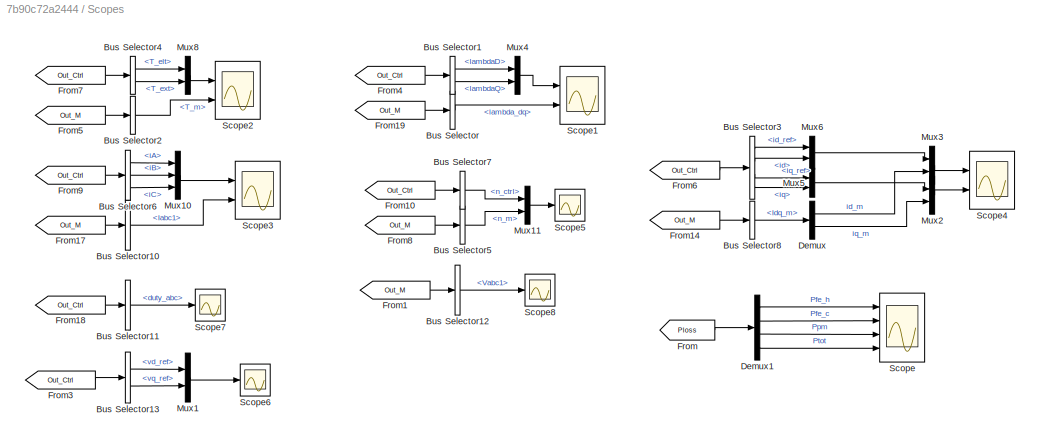
BLOCK [SubSystem] Scopes
  Ports = []
BLOCK [BusSelector] Scopes/Bus Selector
  OutputSignals = lambda_dq
  Ports = [1, 1]
BLOCK [BusSelector] Scopes/Bus Selector1
  OutputSignals = lambdaD,lambdaQ
  Ports = [1, 2]
BLOCK [BusSelector] Scopes/Bus Selector10
  OutputSignals = Iabc1
  Ports = [1, 1]
BLOCK [BusSelector] Scopes/Bus Selector11
  OutputSignals = duty_abc
  Ports = [1, 1]
BLOCK [BusSelector] Scopes/Bus Selector12
  OutputSignals = Vabc1
  Ports = [1, 1]
BLOCK [BusSelector] Scopes/Bus Selector13
  OutputSignals = vd_ref,vq_ref
  Ports = [1, 2]
BLOCK [BusSelector] Scopes/Bus Selector2
  OutputSignals = T_m
  Ports = [1, 1]
BLOCK [BusSelector] Scopes/Bus Selector3
  OutputSignals = id_ref,id,iq_ref,iq
  Ports = [1, 4]
BLOCK [BusSelector] Scopes/Bus Selector4
  OutputSignals = T_elt,T_ext
  Ports = [1, 2]
BLOCK [BusSelector] Scopes/Bus Selector5
  OutputSignals = n_m
  Ports = [1, 1]
BLOCK [BusSelector] Scopes/Bus Selector6
  OutputSignals = iA,iB,iC
  Ports = [1, 3]
BLOCK [BusSelector] Scopes/Bus Selector7
  OutputSignals = n_ctrl
  Ports = [1, 1]
BLOCK [BusSelector] Scopes/Bus Selector8
  OutputSignals = Idq_m
  Ports = [1, 1]
BLOCK [Demux] Scopes/Demux
  Outputs = 2
  Ports = [1, 2]
BLOCK [Demux] Scopes/Demux1
  Ports = [1, 4]
BLOCK [From] Scopes/From
  GotoTag = Ploss
  TagVisibility = global
BLOCK [From] Scopes/From1
  CloseFcn = tagdialog Close
  GotoTag = Out_M
  TagVisibility = global
BLOCK [From] Scopes/From10
  CloseFcn = tagdialog Close
  GotoTag = Out_Ctrl
  TagVisibility = global
BLOCK [From] Scopes/From14
  CloseFcn = tagdialog Close
  GotoTag = Out_M
  TagVisibility = global
BLOCK [From] Scopes/From17
  CloseFcn = tagdialog Close
  GotoTag = Out_M
  TagVisibility = global
BLOCK [From] Scopes/From18
  CloseFcn = tagdialog Close
  GotoTag = Out_Ctrl
  TagVisibility = global
BLOCK [From] Scopes/From19
  CloseFcn = tagdialog Close
  GotoTag = Out_M
  TagVisibility = global
BLOCK [From] Scopes/From3
  CloseFcn = tagdialog Close
  GotoTag = Out_Ctrl
  TagVisibility = global
BLOCK [From] Scopes/From4
  CloseFcn = tagdialog Close
  GotoTag = Out_Ctrl
  TagVisibility = global
BLOCK [From] Scopes/From5
  CloseFcn = tagdialog Close
  GotoTag = Out_M
  TagVisibility = global
BLOCK [From] Scopes/From6
  CloseFcn = tagdialog Close
  GotoTag = Out_Ctrl
  TagVisibility = global
BLOCK [From] Scopes/From7
  CloseFcn = tagdialog Close
  GotoTag = Out_Ctrl
  TagVisibility = global
BLOCK [From] Scopes/From8
  CloseFcn = tagdialog Close
  GotoTag = Out_M
  TagVisibility = global
BLOCK [From] Scopes/From9
  CloseFcn = tagdialog Close
  GotoTag = Out_Ctrl
  TagVisibility = global
BLOCK [Mux] Scopes/Mux1
  DisplayOption = bar
  Inputs = 2
  Ports = [2, 1]
BLOCK [Mux] Scopes/Mux10
  DisplayOption = bar
  Inputs = 3
  Ports = [3, 1]
BLOCK [Mux] Scopes/Mux11
  DisplayOption = bar
  Inputs = 2
  Ports = [2, 1]
BLOCK [Mux] Scopes/Mux2
  DisplayOption = bar
  Inputs = 2
  Ports = [2, 1]
BLOCK [Mux] Scopes/Mux3
  DisplayOption = bar
  Inputs = 2
  Ports = [2, 1]
BLOCK [Mux] Scopes/Mux4
  DisplayOption = bar
  Inputs = 2
  Ports = [2, 1]
BLOCK [Mux] Scopes/Mux5
  DisplayOption = bar
  Inputs = 2
  Ports = [2, 1]
BLOCK [Mux] Scopes/Mux6
  DisplayOption = bar
  Inputs = 2
  Ports = [2, 1]
BLOCK [Mux] Scopes/Mux8
  DisplayOption = bar
  Inputs = 2
  Ports = [2, 1]
BLOCK [Scope] Scopes/Scope
  Floating = off
  NumInputPorts = 4
  Ports = [4]
  ScopeSpecificationString = Simulink.scopes.TimeScopeBlockCfg('CurrentConfiguration', extmgr.ConfigurationSet(extmgr.Configuration('Core','General UI',true),extmgr.Configuration('Core','Source UI',true),extmgr.Configuration('Sources','WiredSimulink',true,'DataLoggingVariableName','ScopeData1'),extmgr.Configuration('Visuals','Time Domain',true,'SerializedDisplays',{struct('MinYLimReal','-5.70218','MaxYLimReal','51.31958','YLa...<+1828ch>
BLOCK [Scope] Scopes/Scope1
  Floating = off
  NumInputPorts = 2
  Ports = [2]
  ScopeSpecificationString = Simulink.scopes.TimeScopeBlockCfg('CurrentConfiguration', extmgr.ConfigurationSet(extmgr.Configuration('Core','General UI',true),extmgr.Configuration('Core','Source UI',true),extmgr.Configuration('Sources','WiredSimulink',true,'DataLoggingVariableName','ScopeData4'),extmgr.Configuration('Visuals','Time Domain',true,'SerializedDisplays',{struct('MinYLimReal','-0.1992','MaxYLimReal','0.40298','YLabe...<+1597ch>
BLOCK [Scope] Scopes/Scope2
  Floating = off
  NumInputPorts = 2
  Ports = [2]
  ScopeSpecificationString = Simulink.scopes.TimeScopeBlockCfg('CurrentConfiguration', extmgr.ConfigurationSet(extmgr.Configuration('Core','General UI',true),extmgr.Configuration('Core','Source UI',true),extmgr.Configuration('Sources','WiredSimulink',true,'DataLoggingVariableName','ScopeData2'),extmgr.Configuration('Visuals','Time Domain',true,'SerializedDisplays',{struct('MinYLimReal','-633.93441','MaxYLimReal','687.21054','...<+1564ch>
BLOCK [Scope] Scopes/Scope3
  Floating = off
  NumInputPorts = 2
  Ports = [2]
  ScopeSpecificationString = Simulink.scopes.TimeScopeBlockCfg('CurrentConfiguration', extmgr.ConfigurationSet(extmgr.Configuration('Core','General UI',true),extmgr.Configuration('Core','Source UI',true),extmgr.Configuration('Sources','WiredSimulink',true,'DataLoggingVariableName','ScopeData1'),extmgr.Configuration('Visuals','Time Domain',true,'SerializedDisplays',{struct('MinYLimReal','-1836.00632','MaxYLimReal','2198.99756'...<+1647ch>
BLOCK [Scope] Scopes/Scope4
  Floating = off
  NumInputPorts = 2
  Ports = [2]
  ScopeSpecificationString = Simulink.scopes.TimeScopeBlockCfg('CurrentConfiguration', extmgr.ConfigurationSet(extmgr.Configuration('Core','General UI',true),extmgr.Configuration('Core','Source UI',true),extmgr.Configuration('Sources','WiredSimulink',true,'DataLoggingVariableName','ScopeData1'),extmgr.Configuration('Visuals','Time Domain',true,'SerializedDisplays',{struct('MinYLimReal','-1641.43099','MaxYLimReal','447.81957',...<+2105ch>
BLOCK [Scope] Scopes/Scope5
  Floating = off
  NumInputPorts = 1
  Ports = [1]
  ScopeSpecificationString = Simulink.scopes.TimeScopeBlockCfg('CurrentConfiguration', extmgr.ConfigurationSet(extmgr.Configuration('Core','General UI',true),extmgr.Configuration('Core','Source UI',true),extmgr.Configuration('Sources','WiredSimulink',true,'DataLoggingVariableName','ScopeData3'),extmgr.Configuration('Visuals','Time Domain',true,'SerializedDisplays',{struct('MinYLimReal','-500.00000','MaxYLimReal','4500.00000',...<+1473ch>
BLOCK [Scope] Scopes/Scope6
  Floating = off
  NumInputPorts = 1
  Ports = [1]
  ScopeSpecificationString = Simulink.scopes.TimeScopeBlockCfg('CurrentConfiguration', extmgr.ConfigurationSet(extmgr.Configuration('Core','General UI',true),extmgr.Configuration('Core','Source UI',true),extmgr.Configuration('Sources','WiredSimulink',true,'DataLoggingVariableName','ScopeData3'),extmgr.Configuration('Visuals','Time Domain',true,'SerializedDisplays',{struct('MinYLimReal','-500.00000','MaxYLimReal','4500.00000',...<+1473ch>
BLOCK [Scope] Scopes/Scope7
  Floating = off
  NumInputPorts = 1
  Ports = [1]
  ScopeSpecificationString = Simulink.scopes.TimeScopeBlockCfg('CurrentConfiguration', extmgr.ConfigurationSet(extmgr.Configuration('Core','General UI',true),extmgr.Configuration('Core','Source UI',true),extmgr.Configuration('Sources','WiredSimulink',true,'DataLoggingVariableName','ScopeData5'),extmgr.Configuration('Visuals','Time Domain',true,'SerializedDisplays',{struct('MinYLimReal','-0.12375','MaxYLimReal','1.11375','YLab...<+1472ch>
BLOCK [Scope] Scopes/Scope8
  Floating = off
  NumInputPorts = 1
  Ports = [1]
  ScopeSpecificationString = Simulink.scopes.TimeScopeBlockCfg('CurrentConfiguration', extmgr.ConfigurationSet(extmgr.Configuration('Core','General UI',true),extmgr.Configuration('Core','Source UI',true),extmgr.Configuration('Sources','WiredSimulink',true,'DataLoggingVariableName','ScopeData2'),extmgr.Configuration('Visuals','Time Domain',true,'SerializedDisplays',{struct('MinYLimReal','-258.66664','MaxYLimReal','258.66665','...<+1569ch>
BLOCK [SubSystem] Subsystem
  Ports = [1, 1]
BLOCK [Gain] Subsystem/Gain1
  Gain = p
BLOCK [Mux] Subsystem/Mux3
  DisplayOption = bar
  Inputs = 2
  Ports = [2, 1]
BLOCK [Scope] Subsystem/Scope
  Floating = off
  NumInputPorts = 1
  Ports = [1]
  ScopeSpecificationString = Simulink.scopes.TimeScopeBlockCfg('CurrentConfiguration', extmgr.ConfigurationSet(extmgr.Configuration('Core','General UI',true),extmgr.Configuration('Core','Source UI',true),extmgr.Configuration('Sources','WiredSimulink',true,'DataLoggingVariableName','ScopeData3'),extmgr.Configuration('Visuals','Time Domain',true,'SerializedDisplays',{struct('MinYLimReal','-1.68569','MaxYLimReal','1.05356','YLab...<+1423ch>
BLOCK [Scope] Subsystem/Scope1
  Floating = off
  NumInputPorts = 1
  Ports = [1]
  ScopeSpecificationString = Simulink.scopes.TimeScopeBlockCfg('CurrentConfiguration', extmgr.ConfigurationSet(extmgr.Configuration('Core','General UI',true),extmgr.Configuration('Core','Source UI',true),extmgr.Configuration('Sources','WiredSimulink',true,'DataLoggingVariableName','ScopeData4'),extmgr.Configuration('Visuals','Time Domain',true,'SerializedDisplays',{struct('MinYLimReal','3.141563','MaxYLimReal','3.141619','YLa...<+1426ch>
BLOCK [Trigonometry] Subsystem/Sin
  Ports = [1, 1]
BLOCK [Trigonometry] Subsystem/Sin1
  Operator = cos
  Ports = [1, 1]
BLOCK [Outport] Subsystem/SinCos
BLOCK [Inport] Subsystem/theta_r
BLOCK [SubSystem] ab->dq
  Ports = [2, 1]
BLOCK [Demux] ab->dq/Demux
  Outputs = 2
  Ports = [1, 2]
BLOCK [Demux] ab->dq/Demux1
  Outputs = 2
  Ports = [1, 2]
BLOCK [Mux] ab->dq/Mux
  Commented = on
  DisplayOption = bar
  Inputs = 2
  Ports = [2, 1]
BLOCK [Mux] ab->dq/Mux1
  Commented = on
  DisplayOption = bar
  Inputs = 2
  Ports = [2, 1]
BLOCK [Mux] ab->dq/Mux2
  DisplayOption = bar
  Inputs = 2
  Ports = [2, 1]
BLOCK [Product] ab->dq/Product
  Ports = [2, 1]
BLOCK [Product] ab->dq/Product1
  Ports = [2, 1]
BLOCK [Product] ab->dq/Product2
  Ports = [2, 1]
BLOCK [Product] ab->dq/Product3
  Ports = [2, 1]
BLOCK [Sum] ab->dq/Subtract
  IconShape = rectangular
  Ports = [2, 1]
BLOCK [Sum] ab->dq/Subtract1
  IconShape = rectangular
  Inputs = -+
  Ports = [2, 1]
BLOCK [Inport] ab->dq/X_ab
BLOCK [Fcn] ab->dq/X_d
  Commented = on
  Expr = u(1)*u(4) + u(2)*u(3)
BLOCK [Outport] ab->dq/X_dq
  InitialOutput = 0
BLOCK [Fcn] ab->dq/X_q
  Commented = on
  Expr = - u(1)*u(3) + u(2)*u(4)
BLOCK [Inport] ab->dq/sin,cos
  Port = 2
BLOCK [SubSystem] dq->ab1
  Ports = [2, 1]
BLOCK [Demux] dq->ab1/Demux
  Outputs = 2
  Ports = [1, 2]
BLOCK [Demux] dq->ab1/Demux1
  Outputs = 2
  Ports = [1, 2]
BLOCK [Mux] dq->ab1/Mux
  DisplayOption = bar
  Inputs = 2
  Ports = [2, 1]
BLOCK [Mux] dq->ab1/Mux2
  Commented = on
  Inputs = 2
  Ports = [2, 1]
BLOCK [Mux] dq->ab1/Mux3
  Commented = on
  Inputs = 2
  Ports = [2, 1]
BLOCK [Product] dq->ab1/Product
  Ports = [2, 1]
BLOCK [Product] dq->ab1/Product1
  Ports = [2, 1]
BLOCK [Product] dq->ab1/Product2
  Ports = [2, 1]
BLOCK [Product] dq->ab1/Product3
  Ports = [2, 1]
BLOCK [Sum] dq->ab1/Subtract
  IconShape = rectangular
  Inputs = +-
  Ports = [2, 1]
BLOCK [Sum] dq->ab1/Subtract1
  IconShape = rectangular
  Ports = [2, 1]
BLOCK [Inport] dq->ab1/X_ab
BLOCK [Fcn] dq->ab1/X_d1
  Commented = on
  Expr = u(1)*u(4) - u(2)*u(3)
BLOCK [Outport] dq->ab1/X_dq
  InitialOutput = 0
BLOCK [Fcn] dq->ab1/X_q1
  Commented = on
  Expr = u(1)*u(3) + u(2)*u(4)
BLOCK [Inport] dq->ab1/sin,cos
  Port = 2
BLOCK [SubSystem] load torque and speed
  Ports = [0, 2]
BLOCK [Gain] load torque and speed/Gain3
  Gain = n0
BLOCK [Gain] load torque and speed/Gain4
  Gain = T0
BLOCK [Goto] load torque and speed/Goto1
  GotoTag = T_load
  NameLocation = top
  TagVisibility = global
BLOCK [SubSystem] load torque and speed/load speed
  ClipboardFcn = sigbuilder_block('clipboard');
  CloseFcn = sigbuilder_block('close');
  ContinueFcn = sigbuilder_block('continue');
  CopyFcn = sigbuilder_block('copy');
  DeleteFcn = sigbuilder_block('delete');
  LoadFcn = sigbuilder_block('load');
  MaskHideContents = on
  ModelCloseFcn = sigbuilder_block('modelClose');
  NameChangeFcn = sigbuilder_block('namechange');
  OpenFcn = sigbuilder_block('open',[1960.8 11.4 550.2 315.6 ]);
  PauseFcn = sigbuilder_block('pause');
  Ports = [0, 1]
  PreSaveFcn = sigbuilder_block('preSave');
  StartFcn = sigbuilder_block('start');
  StopFcn = sigbuilder_block('stop');
  Tag = STV Subsys
BLOCK [Demux] load torque and speed/load speed/Demux
  DisplayOption = none
  Outputs = 1
  Ports = [1, 1]
  Tag = STV Demux
BLOCK [FromWorkspace] load torque and speed/load speed/FromWs
  Tag = STV FromWs
  VariableName = tuvar
BLOCK [Outport] load torque and speed/load speed/Signal 1
  Tag = STV Outport
BLOCK [SubSystem] load torque and speed/load torque
  ClipboardFcn = sigbuilder_block('clipboard');
  CloseFcn = sigbuilder_block('close');
  ContinueFcn = sigbuilder_block('continue');
  CopyFcn = sigbuilder_block('copy');
  DeleteFcn = sigbuilder_block('delete');
  LoadFcn = sigbuilder_block('load');
  MaskHideContents = on
  ModelCloseFcn = sigbuilder_block('modelClose');
  NameChangeFcn = sigbuilder_block('namechange');
  OpenFcn = sigbuilder_block('open',[246.6 156.6 550.2 360.6 ]);
  PauseFcn = sigbuilder_block('pause');
  Ports = [0, 1]
  PreSaveFcn = sigbuilder_block('preSave');
  StartFcn = sigbuilder_block('start');
  StopFcn = sigbuilder_block('stop');
  Tag = STV Subsys
BLOCK [Demux] load torque and speed/load torque/Demux
  DisplayOption = none
  Outputs = 1
  Ports = [1, 1]
  Tag = STV Demux
BLOCK [FromWorkspace] load torque and speed/load torque/FromWs
  Tag = STV FromWs
  VariableName = tuvar
BLOCK [Outport] load torque and speed/load torque/Signal 1
  Tag = STV Outport
BLOCK [Outport] load torque and speed/load_speed
  Port = 2
BLOCK [Outport] load torque and speed/load_torque
ANNOTATION Inverse Flux Maps/Inverse Flux Maps : 1) Add Subsystem or Model blocks as valid variant choices. 2) You cannot connect blocks at this level. At simulation, connectivity is automatically determined, based on the active variant and port name matching.
ANNOTATION Inverse Flux Maps/Inverse Flux Maps /2D LUT/dq Model: 1) Add Subsystem or Model blocks as valid variant choices. 2) You cannot connect blocks at this level. At simulation, connectivity is automatically determined, based on the active variant and port name matching.
ANNOTATION Inverse Flux Maps/Inverse Flux Maps /3D LUTs/Variant Subsystem: 1) Add Subsystem or Model blocks as valid variant choices. 2) You cannot connect blocks at this level. At simulation, connectivity is automatically determined, based on the active variant and port name matching.
ANNOTATION Inverter Model/Inverter Commands: 1) Add Subsystem or Model blocks as valid variant choices. 2) You cannot connect blocks at this level. At simulation, connectivity is automatically determined, based on the active variant and port name matching.
ANNOTATION Iron Losses Maps: 1) Add Subsystem or Model blocks as valid variant choices. 2) You cannot connect blocks at this level. At simulation, connectivity is automatically determined, based on the active variant and port name matching.
LINE Digital Control/Constant10:1 -> Digital Control/Mux9:3
LINE Digital Control/Constant1:1 -> Digital Control/Mux9:4
LINE Digital Control/Constant2:1 -> Digital Control/Mux9:5
LINE Digital Control/Constant3:1 -> Digital Control/Mux9:1
LINE Digital Control/Constant4:1 -> Digital Control/Mux9:6
LINE Digital Control/Constant9:1 -> Digital Control/Mux9:2
LINE Digital Control/Digital Control/Bus Creator:1 -> Digital Control/Digital Control/Outputs:1
LINE Digital Control/Digital Control/Commands:1 -> Digital Control/Digital Control/Demux1:1
LINE Digital Control/Digital Control/Control S-Function:1 -> Digital Control/Digital Control/Unit Delay:1
LINE Digital Control/Digital Control/Demux1:1 -> Digital Control/Digital Control/Mux:7
LINE Digital Control/Digital Control/Demux1:2 -> Digital Control/Digital Control/Mux:8
LINE Digital Control/Digital Control/Demux2:1 -> Digital Control/Digital Control/Mux1:1
LINE Digital Control/Digital Control/Demux2:10 -> Digital Control/Digital Control/Bus Creator:7
LINE Digital Control/Digital Control/Demux2:11 -> Digital Control/Digital Control/Bus Creator:8
LINE Digital Control/Digital Control/Demux2:12 -> Digital Control/Digital Control/Bus Creator:9
LINE Digital Control/Digital Control/Demux2:13 -> Digital Control/Digital Control/Bus Creator:10
LINE Digital Control/Digital Control/Demux2:14 -> Digital Control/Digital Control/Bus Creator:11
LINE Digital Control/Digital Control/Demux2:15 -> Digital Control/Digital Control/Bus Creator:12
LINE Digital Control/Digital Control/Demux2:16 -> Digital Control/Digital Control/Bus Creator:13
LINE Digital Control/Digital Control/Demux2:17 -> Digital Control/Digital Control/Bus Creator:14
LINE Digital Control/Digital Control/Demux2:18 -> Digital Control/Digital Control/Bus Creator:15
LINE Digital Control/Digital Control/Demux2:19 -> Digital Control/Digital Control/Bus Creator:16
LINE Digital Control/Digital Control/Demux2:2 -> Digital Control/Digital Control/Mux1:2
LINE Digital Control/Digital Control/Demux2:20 -> Digital Control/Digital Control/Bus Creator:17
LINE Digital Control/Digital Control/Demux2:21 -> Digital Control/Digital Control/Bus Creator:18
LINE Digital Control/Digital Control/Demux2:22 -> Digital Control/Digital Control/Bus Creator:19
LINE Digital Control/Digital Control/Demux2:23 -> Digital Control/Digital Control/Bus Creator:20
LINE Digital Control/Digital Control/Demux2:24 -> Digital Control/Digital Control/Bus Creator:21
LINE Digital Control/Digital Control/Demux2:25 -> Digital Control/Digital Control/Bus Creator:22
LINE Digital Control/Digital Control/Demux2:26 -> Digital Control/Digital Control/Bus Creator:23
LINE Digital Control/Digital Control/Demux2:27 -> Digital Control/Digital Control/Bus Creator:24
LINE Digital Control/Digital Control/Demux2:28 -> Digital Control/Digital Control/Bus Creator:25
LINE Digital Control/Digital Control/Demux2:29 -> Digital Control/Digital Control/Bus Creator:26
LINE Digital Control/Digital Control/Demux2:3 -> Digital Control/Digital Control/Mux1:3
LINE Digital Control/Digital Control/Demux2:30 -> Digital Control/Digital Control/Bus Creator:27
LINE Digital Control/Digital Control/Demux2:31 -> Digital Control/Digital Control/Bus Creator:28
LINE Digital Control/Digital Control/Demux2:32 -> Digital Control/Digital Control/Bus Creator:29
LINE Digital Control/Digital Control/Demux2:33 -> Digital Control/Digital Control/Bus Creator:30
LINE Digital Control/Digital Control/Demux2:34 -> Digital Control/Digital Control/Bus Creator:31
LINE Digital Control/Digital Control/Demux2:4 -> Digital Control/Digital Control/pwm_stop:1
LINE Digital Control/Digital Control/Demux2:5 -> Digital Control/Digital Control/Bus Creator:2
LINE Digital Control/Digital Control/Demux2:6 -> Digital Control/Digital Control/Bus Creator:3
LINE Digital Control/Digital Control/Demux2:7 -> Digital Control/Digital Control/Bus Creator:4
LINE Digital Control/Digital Control/Demux2:8 -> Digital Control/Digital Control/Bus Creator:5
LINE Digital Control/Digital Control/Demux2:9 -> Digital Control/Digital Control/Bus Creator:6
LINE Digital Control/Digital Control/Inputs:1 -> Digital Control/Digital Control/Mux:9
NET Digital Control/Digital Control/Mux1:1 -> Digital Control/Digital Control/Bus Creator:1, Digital Control/Digital Control/duty_abc:1
LINE Digital Control/Digital Control/Mux:1 -> Digital Control/Digital Control/Control S-Function:1
LINE Digital Control/Digital Control/T*:1 -> Digital Control/Digital Control/Mux:5
LINE Digital Control/Digital Control/Unit Delay:1 -> Digital Control/Digital Control/Demux2:1
LINE Digital Control/Digital Control/iabcs:1 -> Digital Control/Digital Control/Mux:1
LINE Digital Control/Digital Control/isdq_ref:1 -> Digital Control/Digital Control/Mux:6
LINE Digital Control/Digital Control/n*:1 -> Digital Control/Digital Control/Mux:4
LINE Digital Control/Digital Control/theta_mec_meas:1 -> Digital Control/Digital Control/Mux:3
LINE Digital Control/Digital Control/vdc:1 -> Digital Control/Digital Control/Mux:2
NET Digital Control/Digital Control:3 -> Digital Control/Goto5:1, Digital Control/To Workspace:1
LINE Digital Control/From1:1 -> Digital Control/Digital Control:3
LINE Digital Control/From:1 -> Digital Control/Unit Delay:1
LINE Digital Control/Gain:1 -> Digital Control/Digital Control:5
LINE Digital Control/Go1/Constant:1 -> Digital Control/Go1/Subtract:1
LINE Digital Control/Go1/GO1_Down:1 -> Digital Control/Go1/Subtract:3
LINE Digital Control/Go1/GO1_Up:1 -> Digital Control/Go1/Subtract:2
LINE Digital Control/Go1/GO2_Down:1 -> Digital Control/Go1/Subtract:5
LINE Digital Control/Go1/GO2_Up:1 -> Digital Control/Go1/Subtract:4
LINE Digital Control/Go1/Subtract:1 -> Digital Control/Go1/Go:1
LINE Digital Control/Go1:1 -> Digital Control/Mux7:2
LINE Digital Control/Mux1:1 -> Digital Control/Digital Control:6
LINE Digital Control/Mux7:1 -> Digital Control/Digital Control:7
LINE Digital Control/Mux9:1 -> Digital Control/Digital Control:8
LINE Digital Control/PWM Interrupt:1 -> Digital Control/Digital Control:trigger
LINE Digital Control/Restart1/DOWN :1 -> Digital Control/Restart1/Subtract:2
LINE Digital Control/Restart1/Subtract:1 -> Digital Control/Restart1/Res:1
LINE Digital Control/Restart1/UP :1 -> Digital Control/Restart1/Subtract:1
LINE Digital Control/Restart1:1 -> Digital Control/Mux7:1
LINE Digital Control/Signal Builder:1 -> Digital Control/Digital Control:4
LINE Digital Control/Torque Reference:1 -> Digital Control/Gain:1
LINE Digital Control/Unit Delay:1 -> Digital Control/Digital Control:2
LINE Digital Control/isdq_ref.d:1 -> Digital Control/Mux1:1
LINE Digital Control/isdq_ref.q:1 -> Digital Control/Mux1:2
LINE Inverse Flux Maps/Fdq:1 -> Inverse Flux Maps/Inverse Flux Maps :1
LINE Inverse Flux Maps/Gain:1 -> Inverse Flux Maps/Inverse Flux Maps :2
LINE Inverse Flux Maps/Inverse Flux Maps /2D LUT/Fdq:1 -> Inverse Flux Maps/Inverse Flux Maps /2D LUT/dq Model:1
NET Inverse Flux Maps/Inverse Flux Maps /2D LUT/dq Model/IPM/1-D Lookup Table:1 -> Inverse Flux Maps/Inverse Flux Maps /2D LUT/dq Model/IPM/Divide1:1, Inverse Flux Maps/Inverse Flux Maps /2D LUT/dq Model/IPM/Saturation Dynamic:1
NET Inverse Flux Maps/Inverse Flux Maps /2D LUT/dq Model/IPM/Abs1:1 -> Inverse Flux Maps/Inverse Flux Maps /2D LUT/dq Model/IPM/Saturation Dynamic:2, Inverse Flux Maps/Inverse Flux Maps /2D LUT/dq Model/IPM/Saturation Dynamic:3
LINE Inverse Flux Maps/Inverse Flux Maps /2D LUT/dq Model/IPM/Bias:1 -> Inverse Flux Maps/Inverse Flux Maps /2D LUT/dq Model/IPM/Divide:1
LINE Inverse Flux Maps/Inverse Flux Maps /2D LUT/dq Model/IPM/Constant:1 -> Inverse Flux Maps/Inverse Flux Maps /2D LUT/dq Model/IPM/Divide:2
LINE Inverse Flux Maps/Inverse Flux Maps /2D LUT/dq Model/IPM/Demux:1 -> Inverse Flux Maps/Inverse Flux Maps /2D LUT/dq Model/IPM/Saturation:1
NET Inverse Flux Maps/Inverse Flux Maps /2D LUT/dq Model/IPM/Demux:2 -> Inverse Flux Maps/Inverse Flux Maps /2D LUT/dq Model/IPM/Abs1:1, Inverse Flux Maps/Inverse Flux Maps /2D LUT/dq Model/IPM/Sign1:1
NET Inverse Flux Maps/Inverse Flux Maps /2D LUT/dq Model/IPM/Divide1:1 -> Inverse Flux Maps/Inverse Flux Maps /2D LUT/dq Model/IPM/Id_pu:1, Inverse Flux Maps/Inverse Flux Maps /2D LUT/dq Model/IPM/Iq_pu:1
NET Inverse Flux Maps/Inverse Flux Maps /2D LUT/dq Model/IPM/Divide:1 -> Inverse Flux Maps/Inverse Flux Maps /2D LUT/dq Model/IPM/Id_pu:2, Inverse Flux Maps/Inverse Flux Maps /2D LUT/dq Model/IPM/Iq_pu:2
NET Inverse Flux Maps/Inverse Flux Maps /2D LUT/dq Model/IPM/Fdq:1 -> Inverse Flux Maps/Inverse Flux Maps /2D LUT/dq Model/IPM/Demux:1, Inverse Flux Maps/Inverse Flux Maps /2D LUT/dq Model/IPM/Torque calculation:2
LINE Inverse Flux Maps/Inverse Flux Maps /2D LUT/dq Model/IPM/Id_pu:1 -> Inverse Flux Maps/Inverse Flux Maps /2D LUT/dq Model/IPM/Mux:1
LINE Inverse Flux Maps/Inverse Flux Maps /2D LUT/dq Model/IPM/Iq_pu:1 -> Inverse Flux Maps/Inverse Flux Maps /2D LUT/dq Model/IPM/Product1:1
NET Inverse Flux Maps/Inverse Flux Maps /2D LUT/dq Model/IPM/Mux:1 -> Inverse Flux Maps/Inverse Flux Maps /2D LUT/dq Model/IPM/Torque calculation:1, Inverse Flux Maps/Inverse Flux Maps /2D LUT/dq Model/IPM/idq:1
LINE Inverse Flux Maps/Inverse Flux Maps /2D LUT/dq Model/IPM/Product1:1 -> Inverse Flux Maps/Inverse Flux Maps /2D LUT/dq Model/IPM/Mux:2
LINE Inverse Flux Maps/Inverse Flux Maps /2D LUT/dq Model/IPM/Saturation Dynamic:1 -> Inverse Flux Maps/Inverse Flux Maps /2D LUT/dq Model/IPM/Divide1:2
NET Inverse Flux Maps/Inverse Flux Maps /2D LUT/dq Model/IPM/Saturation:1 -> Inverse Flux Maps/Inverse Flux Maps /2D LUT/dq Model/IPM/1-D Lookup Table:1, Inverse Flux Maps/Inverse Flux Maps /2D LUT/dq Model/IPM/Bias:1
LINE Inverse Flux Maps/Inverse Flux Maps /2D LUT/dq Model/IPM/Sign1:1 -> Inverse Flux Maps/Inverse Flux Maps /2D LUT/dq Model/IPM/Product1:2
LINE Inverse Flux Maps/Inverse Flux Maps /2D LUT/dq Model/IPM/Torque calculation/Add:1 -> Inverse Flux Maps/Inverse Flux Maps /2D LUT/dq Model/IPM/Torque calculation/Gain2:1
LINE Inverse Flux Maps/Inverse Flux Maps /2D LUT/dq Model/IPM/Torque calculation/Demux1:1 -> Inverse Flux Maps/Inverse Flux Maps /2D LUT/dq Model/IPM/Torque calculation/Product:1
LINE Inverse Flux Maps/Inverse Flux Maps /2D LUT/dq Model/IPM/Torque calculation/Demux1:2 -> Inverse Flux Maps/Inverse Flux Maps /2D LUT/dq Model/IPM/Torque calculation/Product1:1
LINE Inverse Flux Maps/Inverse Flux Maps /2D LUT/dq Model/IPM/Torque calculation/Demux3:1 -> Inverse Flux Maps/Inverse Flux Maps /2D LUT/dq Model/IPM/Torque calculation/Product1:2
LINE Inverse Flux Maps/Inverse Flux Maps /2D LUT/dq Model/IPM/Torque calculation/Demux3:2 -> Inverse Flux Maps/Inverse Flux Maps /2D LUT/dq Model/IPM/Torque calculation/Product:2
LINE Inverse Flux Maps/Inverse Flux Maps /2D LUT/dq Model/IPM/Torque calculation/Fdq:1 -> Inverse Flux Maps/Inverse Flux Maps /2D LUT/dq Model/IPM/Torque calculation/Demux1:1
LINE Inverse Flux Maps/Inverse Flux Maps /2D LUT/dq Model/IPM/Torque calculation/Gain2:1 -> Inverse Flux Maps/Inverse Flux Maps /2D LUT/dq Model/IPM/Torque calculation/Tm:1
LINE Inverse Flux Maps/Inverse Flux Maps /2D LUT/dq Model/IPM/Torque calculation/Idq:1 -> Inverse Flux Maps/Inverse Flux Maps /2D LUT/dq Model/IPM/Torque calculation/Demux3:1
LINE Inverse Flux Maps/Inverse Flux Maps /2D LUT/dq Model/IPM/Torque calculation/Product1:1 -> Inverse Flux Maps/Inverse Flux Maps /2D LUT/dq Model/IPM/Torque calculation/Add:2
LINE Inverse Flux Maps/Inverse Flux Maps /2D LUT/dq Model/IPM/Torque calculation/Product:1 -> Inverse Flux Maps/Inverse Flux Maps /2D LUT/dq Model/IPM/Torque calculation/Add:1
LINE Inverse Flux Maps/Inverse Flux Maps /2D LUT/dq Model/IPM/Torque calculation:1 -> Inverse Flux Maps/Inverse Flux Maps /2D LUT/dq Model/IPM/T:1
NET Inverse Flux Maps/Inverse Flux Maps /2D LUT/dq Model/PM-SyR/1-D Lookup Table:1 -> Inverse Flux Maps/Inverse Flux Maps /2D LUT/dq Model/PM-SyR/Divide1:1, Inverse Flux Maps/Inverse Flux Maps /2D LUT/dq Model/PM-SyR/Saturation Dynamic:1
NET Inverse Flux Maps/Inverse Flux Maps /2D LUT/dq Model/PM-SyR/Abs:1 -> Inverse Flux Maps/Inverse Flux Maps /2D LUT/dq Model/PM-SyR/Saturation Dynamic:2, Inverse Flux Maps/Inverse Flux Maps /2D LUT/dq Model/PM-SyR/Saturation Dynamic:3
LINE Inverse Flux Maps/Inverse Flux Maps /2D LUT/dq Model/PM-SyR/Bias:1 -> Inverse Flux Maps/Inverse Flux Maps /2D LUT/dq Model/PM-SyR/Divide:1
LINE Inverse Flux Maps/Inverse Flux Maps /2D LUT/dq Model/PM-SyR/Constant:1 -> Inverse Flux Maps/Inverse Flux Maps /2D LUT/dq Model/PM-SyR/Divide:2
NET Inverse Flux Maps/Inverse Flux Maps /2D LUT/dq Model/PM-SyR/Demux:1 -> Inverse Flux Maps/Inverse Flux Maps /2D LUT/dq Model/PM-SyR/Abs:1, Inverse Flux Maps/Inverse Flux Maps /2D LUT/dq Model/PM-SyR/Sign2:1
LINE Inverse Flux Maps/Inverse Flux Maps /2D LUT/dq Model/PM-SyR/Demux:2 -> Inverse Flux Maps/Inverse Flux Maps /2D LUT/dq Model/PM-SyR/Saturation:1
NET Inverse Flux Maps/Inverse Flux Maps /2D LUT/dq Model/PM-SyR/Divide1:1 -> Inverse Flux Maps/Inverse Flux Maps /2D LUT/dq Model/PM-SyR/Id_pu:2, Inverse Flux Maps/Inverse Flux Maps /2D LUT/dq Model/PM-SyR/Iq_pu:2
NET Inverse Flux Maps/Inverse Flux Maps /2D LUT/dq Model/PM-SyR/Divide:1 -> Inverse Flux Maps/Inverse Flux Maps /2D LUT/dq Model/PM-SyR/Id_pu:1, Inverse Flux Maps/Inverse Flux Maps /2D LUT/dq Model/PM-SyR/Iq_pu:1
NET Inverse Flux Maps/Inverse Flux Maps /2D LUT/dq Model/PM-SyR/Fdq:1 -> Inverse Flux Maps/Inverse Flux Maps /2D LUT/dq Model/PM-SyR/Demux:1, Inverse Flux Maps/Inverse Flux Maps /2D LUT/dq Model/PM-SyR/Torque calculation:2
LINE Inverse Flux Maps/Inverse Flux Maps /2D LUT/dq Model/PM-SyR/Id_pu:1 -> Inverse Flux Maps/Inverse Flux Maps /2D LUT/dq Model/PM-SyR/Product2:2
LINE Inverse Flux Maps/Inverse Flux Maps /2D LUT/dq Model/PM-SyR/Iq_pu:1 -> Inverse Flux Maps/Inverse Flux Maps /2D LUT/dq Model/PM-SyR/Mux:2
NET Inverse Flux Maps/Inverse Flux Maps /2D LUT/dq Model/PM-SyR/Mux:1 -> Inverse Flux Maps/Inverse Flux Maps /2D LUT/dq Model/PM-SyR/Torque calculation:1, Inverse Flux Maps/Inverse Flux Maps /2D LUT/dq Model/PM-SyR/idq:1
LINE Inverse Flux Maps/Inverse Flux Maps /2D LUT/dq Model/PM-SyR/Product2:1 -> Inverse Flux Maps/Inverse Flux Maps /2D LUT/dq Model/PM-SyR/Mux:1
LINE Inverse Flux Maps/Inverse Flux Maps /2D LUT/dq Model/PM-SyR/Saturation Dynamic:1 -> Inverse Flux Maps/Inverse Flux Maps /2D LUT/dq Model/PM-SyR/Divide1:2
NET Inverse Flux Maps/Inverse Flux Maps /2D LUT/dq Model/PM-SyR/Saturation:1 -> Inverse Flux Maps/Inverse Flux Maps /2D LUT/dq Model/PM-SyR/1-D Lookup Table:1, Inverse Flux Maps/Inverse Flux Maps /2D LUT/dq Model/PM-SyR/Bias:1
LINE Inverse Flux Maps/Inverse Flux Maps /2D LUT/dq Model/PM-SyR/Sign2:1 -> Inverse Flux Maps/Inverse Flux Maps /2D LUT/dq Model/PM-SyR/Product2:1
LINE Inverse Flux Maps/Inverse Flux Maps /2D LUT/dq Model/PM-SyR/Torque calculation/Add:1 -> Inverse Flux Maps/Inverse Flux Maps /2D LUT/dq Model/PM-SyR/Torque calculation/Gain2:1
LINE Inverse Flux Maps/Inverse Flux Maps /2D LUT/dq Model/PM-SyR/Torque calculation/Demux1:1 -> Inverse Flux Maps/Inverse Flux Maps /2D LUT/dq Model/PM-SyR/Torque calculation/Product:1
LINE Inverse Flux Maps/Inverse Flux Maps /2D LUT/dq Model/PM-SyR/Torque calculation/Demux1:2 -> Inverse Flux Maps/Inverse Flux Maps /2D LUT/dq Model/PM-SyR/Torque calculation/Product1:1
LINE Inverse Flux Maps/Inverse Flux Maps /2D LUT/dq Model/PM-SyR/Torque calculation/Demux3:1 -> Inverse Flux Maps/Inverse Flux Maps /2D LUT/dq Model/PM-SyR/Torque calculation/Product1:2
LINE Inverse Flux Maps/Inverse Flux Maps /2D LUT/dq Model/PM-SyR/Torque calculation/Demux3:2 -> Inverse Flux Maps/Inverse Flux Maps /2D LUT/dq Model/PM-SyR/Torque calculation/Product:2
LINE Inverse Flux Maps/Inverse Flux Maps /2D LUT/dq Model/PM-SyR/Torque calculation/Fdq:1 -> Inverse Flux Maps/Inverse Flux Maps /2D LUT/dq Model/PM-SyR/Torque calculation/Demux1:1
LINE Inverse Flux Maps/Inverse Flux Maps /2D LUT/dq Model/PM-SyR/Torque calculation/Gain2:1 -> Inverse Flux Maps/Inverse Flux Maps /2D LUT/dq Model/PM-SyR/Torque calculation/Tm:1
LINE Inverse Flux Maps/Inverse Flux Maps /2D LUT/dq Model/PM-SyR/Torque calculation/Idq:1 -> Inverse Flux Maps/Inverse Flux Maps /2D LUT/dq Model/PM-SyR/Torque calculation/Demux3:1
LINE Inverse Flux Maps/Inverse Flux Maps /2D LUT/dq Model/PM-SyR/Torque calculation/Product1:1 -> Inverse Flux Maps/Inverse Flux Maps /2D LUT/dq Model/PM-SyR/Torque calculation/Add:2
LINE Inverse Flux Maps/Inverse Flux Maps /2D LUT/dq Model/PM-SyR/Torque calculation/Product:1 -> Inverse Flux Maps/Inverse Flux Maps /2D LUT/dq Model/PM-SyR/Torque calculation/Add:1
LINE Inverse Flux Maps/Inverse Flux Maps /2D LUT/dq Model/PM-SyR/Torque calculation:1 -> Inverse Flux Maps/Inverse Flux Maps /2D LUT/dq Model/PM-SyR/T:1
NET Inverse Flux Maps/Inverse Flux Maps /2D LUT/dq Model/SyR/1-D Lookup Table:1 -> Inverse Flux Maps/Inverse Flux Maps /2D LUT/dq Model/SyR/Divide1:1, Inverse Flux Maps/Inverse Flux Maps /2D LUT/dq Model/SyR/Saturation Dynamic:1
NET Inverse Flux Maps/Inverse Flux Maps /2D LUT/dq Model/SyR/Abs1:1 -> Inverse Flux Maps/Inverse Flux Maps /2D LUT/dq Model/SyR/Saturation Dynamic:2, Inverse Flux Maps/Inverse Flux Maps /2D LUT/dq Model/SyR/Saturation Dynamic:3
LINE Inverse Flux Maps/Inverse Flux Maps /2D LUT/dq Model/SyR/Abs2:1 -> Inverse Flux Maps/Inverse Flux Maps /2D LUT/dq Model/SyR/Saturation:1
LINE Inverse Flux Maps/Inverse Flux Maps /2D LUT/dq Model/SyR/Bias:1 -> Inverse Flux Maps/Inverse Flux Maps /2D LUT/dq Model/SyR/Divide:1
LINE Inverse Flux Maps/Inverse Flux Maps /2D LUT/dq Model/SyR/Constant:1 -> Inverse Flux Maps/Inverse Flux Maps /2D LUT/dq Model/SyR/Divide:2
NET Inverse Flux Maps/Inverse Flux Maps /2D LUT/dq Model/SyR/Demux:1 -> Inverse Flux Maps/Inverse Flux Maps /2D LUT/dq Model/SyR/Abs2:1, Inverse Flux Maps/Inverse Flux Maps /2D LUT/dq Model/SyR/Sign2:1
NET Inverse Flux Maps/Inverse Flux Maps /2D LUT/dq Model/SyR/Demux:2 -> Inverse Flux Maps/Inverse Flux Maps /2D LUT/dq Model/SyR/Abs1:1, Inverse Flux Maps/Inverse Flux Maps /2D LUT/dq Model/SyR/Sign1:1
NET Inverse Flux Maps/Inverse Flux Maps /2D LUT/dq Model/SyR/Divide1:1 -> Inverse Flux Maps/Inverse Flux Maps /2D LUT/dq Model/SyR/Id_pu:1, Inverse Flux Maps/Inverse Flux Maps /2D LUT/dq Model/SyR/Iq_pu:1
NET Inverse Flux Maps/Inverse Flux Maps /2D LUT/dq Model/SyR/Divide:1 -> Inverse Flux Maps/Inverse Flux Maps /2D LUT/dq Model/SyR/Id_pu:2, Inverse Flux Maps/Inverse Flux Maps /2D LUT/dq Model/SyR/Iq_pu:2
NET Inverse Flux Maps/Inverse Flux Maps /2D LUT/dq Model/SyR/Fdq:1 -> Inverse Flux Maps/Inverse Flux Maps /2D LUT/dq Model/SyR/Demux:1, Inverse Flux Maps/Inverse Flux Maps /2D LUT/dq Model/SyR/Torque calculation:2
LINE Inverse Flux Maps/Inverse Flux Maps /2D LUT/dq Model/SyR/Id_pu:1 -> Inverse Flux Maps/Inverse Flux Maps /2D LUT/dq Model/SyR/Product2:2
LINE Inverse Flux Maps/Inverse Flux Maps /2D LUT/dq Model/SyR/Iq_pu:1 -> Inverse Flux Maps/Inverse Flux Maps /2D LUT/dq Model/SyR/Product1:1
NET Inverse Flux Maps/Inverse Flux Maps /2D LUT/dq Model/SyR/Mux:1 -> Inverse Flux Maps/Inverse Flux Maps /2D LUT/dq Model/SyR/Torque calculation:1, Inverse Flux Maps/Inverse Flux Maps /2D LUT/dq Model/SyR/idq:1
LINE Inverse Flux Maps/Inverse Flux Maps /2D LUT/dq Model/SyR/Product1:1 -> Inverse Flux Maps/Inverse Flux Maps /2D LUT/dq Model/SyR/Mux:2
LINE Inverse Flux Maps/Inverse Flux Maps /2D LUT/dq Model/SyR/Product2:1 -> Inverse Flux Maps/Inverse Flux Maps /2D LUT/dq Model/SyR/Mux:1
LINE Inverse Flux Maps/Inverse Flux Maps /2D LUT/dq Model/SyR/Saturation Dynamic:1 -> Inverse Flux Maps/Inverse Flux Maps /2D LUT/dq Model/SyR/Divide1:2
NET Inverse Flux Maps/Inverse Flux Maps /2D LUT/dq Model/SyR/Saturation:1 -> Inverse Flux Maps/Inverse Flux Maps /2D LUT/dq Model/SyR/1-D Lookup Table:1, Inverse Flux Maps/Inverse Flux Maps /2D LUT/dq Model/SyR/Bias:1
LINE Inverse Flux Maps/Inverse Flux Maps /2D LUT/dq Model/SyR/Sign1:1 -> Inverse Flux Maps/Inverse Flux Maps /2D LUT/dq Model/SyR/Product1:2
LINE Inverse Flux Maps/Inverse Flux Maps /2D LUT/dq Model/SyR/Sign2:1 -> Inverse Flux Maps/Inverse Flux Maps /2D LUT/dq Model/SyR/Product2:1
LINE Inverse Flux Maps/Inverse Flux Maps /2D LUT/dq Model/SyR/Torque calculation/Add:1 -> Inverse Flux Maps/Inverse Flux Maps /2D LUT/dq Model/SyR/Torque calculation/Gain2:1
LINE Inverse Flux Maps/Inverse Flux Maps /2D LUT/dq Model/SyR/Torque calculation/Demux1:1 -> Inverse Flux Maps/Inverse Flux Maps /2D LUT/dq Model/SyR/Torque calculation/Product:1
LINE Inverse Flux Maps/Inverse Flux Maps /2D LUT/dq Model/SyR/Torque calculation/Demux1:2 -> Inverse Flux Maps/Inverse Flux Maps /2D LUT/dq Model/SyR/Torque calculation/Product1:1
LINE Inverse Flux Maps/Inverse Flux Maps /2D LUT/dq Model/SyR/Torque calculation/Demux3:1 -> Inverse Flux Maps/Inverse Flux Maps /2D LUT/dq Model/SyR/Torque calculation/Product1:2
LINE Inverse Flux Maps/Inverse Flux Maps /2D LUT/dq Model/SyR/Torque calculation/Demux3:2 -> Inverse Flux Maps/Inverse Flux Maps /2D LUT/dq Model/SyR/Torque calculation/Product:2
LINE Inverse Flux Maps/Inverse Flux Maps /2D LUT/dq Model/SyR/Torque calculation/Fdq:1 -> Inverse Flux Maps/Inverse Flux Maps /2D LUT/dq Model/SyR/Torque calculation/Demux1:1
LINE Inverse Flux Maps/Inverse Flux Maps /2D LUT/dq Model/SyR/Torque calculation/Gain2:1 -> Inverse Flux Maps/Inverse Flux Maps /2D LUT/dq Model/SyR/Torque calculation/Tm:1
LINE Inverse Flux Maps/Inverse Flux Maps /2D LUT/dq Model/SyR/Torque calculation/Idq:1 -> Inverse Flux Maps/Inverse Flux Maps /2D LUT/dq Model/SyR/Torque calculation/Demux3:1
LINE Inverse Flux Maps/Inverse Flux Maps /2D LUT/dq Model/SyR/Torque calculation/Product1:1 -> Inverse Flux Maps/Inverse Flux Maps /2D LUT/dq Model/SyR/Torque calculation/Add:2
LINE Inverse Flux Maps/Inverse Flux Maps /2D LUT/dq Model/SyR/Torque calculation/Product:1 -> Inverse Flux Maps/Inverse Flux Maps /2D LUT/dq Model/SyR/Torque calculation/Add:1
LINE Inverse Flux Maps/Inverse Flux Maps /2D LUT/dq Model/SyR/Torque calculation:1 -> Inverse Flux Maps/Inverse Flux Maps /2D LUT/dq Model/SyR/T:1
LINE Inverse Flux Maps/Inverse Flux Maps /2D LUT/dq Model:1 -> Inverse Flux Maps/Inverse Flux Maps /2D LUT/idq:1
LINE Inverse Flux Maps/Inverse Flux Maps /2D LUT/dq Model:2 -> Inverse Flux Maps/Inverse Flux Maps /2D LUT/T:1
LINE Inverse Flux Maps/Inverse Flux Maps /3D LUTs/Fdq:1 -> Inverse Flux Maps/Inverse Flux Maps /3D LUTs/Variant Subsystem:1
LINE Inverse Flux Maps/Inverse Flux Maps /3D LUTs/Variant Subsystem/IPM/Abs4:1 -> Inverse Flux Maps/Inverse Flux Maps /3D LUTs/Variant Subsystem/IPM/Prelookup2:1
LINE Inverse Flux Maps/Inverse Flux Maps /3D LUTs/Variant Subsystem/IPM/Demux1:1 -> Inverse Flux Maps/Inverse Flux Maps /3D LUTs/Variant Subsystem/IPM/Prelookup1:1
NET Inverse Flux Maps/Inverse Flux Maps /3D LUTs/Variant Subsystem/IPM/Demux1:2 -> Inverse Flux Maps/Inverse Flux Maps /3D LUTs/Variant Subsystem/IPM/Abs4:1, Inverse Flux Maps/Inverse Flux Maps /3D LUTs/Variant Subsystem/IPM/Sign3:1
LINE Inverse Flux Maps/Inverse Flux Maps /3D LUTs/Variant Subsystem/IPM/Fdq:1 -> Inverse Flux Maps/Inverse Flux Maps /3D LUTs/Variant Subsystem/IPM/Demux1:1
LINE Inverse Flux Maps/Inverse Flux Maps /3D LUTs/Variant Subsystem/IPM/From10:1 -> Inverse Flux Maps/Inverse Flux Maps /3D LUTs/Variant Subsystem/IPM/Interpolation Using Prelookup4:2
LINE Inverse Flux Maps/Inverse Flux Maps /3D LUTs/Variant Subsystem/IPM/From11:1 -> Inverse Flux Maps/Inverse Flux Maps /3D LUTs/Variant Subsystem/IPM/Interpolation Using Prelookup:3
LINE Inverse Flux Maps/Inverse Flux Maps /3D LUTs/Variant Subsystem/IPM/From12:1 -> Inverse Flux Maps/Inverse Flux Maps /3D LUTs/Variant Subsystem/IPM/Interpolation Using Prelookup:2
LINE Inverse Flux Maps/Inverse Flux Maps /3D LUTs/Variant Subsystem/IPM/From13:1 -> Inverse Flux Maps/Inverse Flux Maps /3D LUTs/Variant Subsystem/IPM/Interpolation Using Prelookup3:1
LINE Inverse Flux Maps/Inverse Flux Maps /3D LUTs/Variant Subsystem/IPM/From14:1 -> Inverse Flux Maps/Inverse Flux Maps /3D LUTs/Variant Subsystem/IPM/Interpolation Using Prelookup4:1
LINE Inverse Flux Maps/Inverse Flux Maps /3D LUTs/Variant Subsystem/IPM/From15:1 -> Inverse Flux Maps/Inverse Flux Maps /3D LUTs/Variant Subsystem/IPM/Interpolation Using Prelookup:1
LINE Inverse Flux Maps/Inverse Flux Maps /3D LUTs/Variant Subsystem/IPM/From16:1 -> Inverse Flux Maps/Inverse Flux Maps /3D LUTs/Variant Subsystem/IPM/Interpolation Using Prelookup4:3
LINE Inverse Flux Maps/Inverse Flux Maps /3D LUTs/Variant Subsystem/IPM/From17:1 -> Inverse Flux Maps/Inverse Flux Maps /3D LUTs/Variant Subsystem/IPM/Interpolation Using Prelookup3:3
LINE Inverse Flux Maps/Inverse Flux Maps /3D LUTs/Variant Subsystem/IPM/From:1 -> Inverse Flux Maps/Inverse Flux Maps /3D LUTs/Variant Subsystem/IPM/Interpolation Using Prelookup3:2
LINE Inverse Flux Maps/Inverse Flux Maps /3D LUTs/Variant Subsystem/IPM/Interpolation Using Prelookup3:1 -> Inverse Flux Maps/Inverse Flux Maps /3D LUTs/Variant Subsystem/IPM/Mux1:1
LINE Inverse Flux Maps/Inverse Flux Maps /3D LUTs/Variant Subsystem/IPM/Interpolation Using Prelookup4:1 -> Inverse Flux Maps/Inverse Flux Maps /3D LUTs/Variant Subsystem/IPM/Product5:1
LINE Inverse Flux Maps/Inverse Flux Maps /3D LUTs/Variant Subsystem/IPM/Interpolation Using Prelookup:1 -> Inverse Flux Maps/Inverse Flux Maps /3D LUTs/Variant Subsystem/IPM/Product6:2
LINE Inverse Flux Maps/Inverse Flux Maps /3D LUTs/Variant Subsystem/IPM/MATLAB Function2:1 -> Inverse Flux Maps/Inverse Flux Maps /3D LUTs/Variant Subsystem/IPM/th_lim:1
LINE Inverse Flux Maps/Inverse Flux Maps /3D LUTs/Variant Subsystem/IPM/Mux1:1 -> Inverse Flux Maps/Inverse Flux Maps /3D LUTs/Variant Subsystem/IPM/idq:1
LINE Inverse Flux Maps/Inverse Flux Maps /3D LUTs/Variant Subsystem/IPM/Prelookup1:1 -> Inverse Flux Maps/Inverse Flux Maps /3D LUTs/Variant Subsystem/IPM/Goto6:1
LINE Inverse Flux Maps/Inverse Flux Maps /3D LUTs/Variant Subsystem/IPM/Prelookup2:1 -> Inverse Flux Maps/Inverse Flux Maps /3D LUTs/Variant Subsystem/IPM/Goto3:1
LINE Inverse Flux Maps/Inverse Flux Maps /3D LUTs/Variant Subsystem/IPM/Prelookup6:1 -> Inverse Flux Maps/Inverse Flux Maps /3D LUTs/Variant Subsystem/IPM/Goto4:1
LINE Inverse Flux Maps/Inverse Flux Maps /3D LUTs/Variant Subsystem/IPM/Product5:1 -> Inverse Flux Maps/Inverse Flux Maps /3D LUTs/Variant Subsystem/IPM/Mux1:2
LINE Inverse Flux Maps/Inverse Flux Maps /3D LUTs/Variant Subsystem/IPM/Product6:1 -> Inverse Flux Maps/Inverse Flux Maps /3D LUTs/Variant Subsystem/IPM/T:1
NET Inverse Flux Maps/Inverse Flux Maps /3D LUTs/Variant Subsystem/IPM/Sign3:1 -> Inverse Flux Maps/Inverse Flux Maps /3D LUTs/Variant Subsystem/IPM/Product5:2, Inverse Flux Maps/Inverse Flux Maps /3D LUTs/Variant Subsystem/IPM/Product6:1
LINE Inverse Flux Maps/Inverse Flux Maps /3D LUTs/Variant Subsystem/IPM/th_lim:1 -> Inverse Flux Maps/Inverse Flux Maps /3D LUTs/Variant Subsystem/IPM/Prelookup6:1
LINE Inverse Flux Maps/Inverse Flux Maps /3D LUTs/Variant Subsystem/IPM/theta_elt:1 -> Inverse Flux Maps/Inverse Flux Maps /3D LUTs/Variant Subsystem/IPM/MATLAB Function2:1
LINE Inverse Flux Maps/Inverse Flux Maps /3D LUTs/Variant Subsystem/PM-SyR/Abs3:1 -> Inverse Flux Maps/Inverse Flux Maps /3D LUTs/Variant Subsystem/PM-SyR/Prelookup1:1
NET Inverse Flux Maps/Inverse Flux Maps /3D LUTs/Variant Subsystem/PM-SyR/Demux1:1 -> Inverse Flux Maps/Inverse Flux Maps /3D LUTs/Variant Subsystem/PM-SyR/Abs3:1, Inverse Flux Maps/Inverse Flux Maps /3D LUTs/Variant Subsystem/PM-SyR/Sign2:1
LINE Inverse Flux Maps/Inverse Flux Maps /3D LUTs/Variant Subsystem/PM-SyR/Demux1:2 -> Inverse Flux Maps/Inverse Flux Maps /3D LUTs/Variant Subsystem/PM-SyR/Prelookup2:1
LINE Inverse Flux Maps/Inverse Flux Maps /3D LUTs/Variant Subsystem/PM-SyR/Fdq:1 -> Inverse Flux Maps/Inverse Flux Maps /3D LUTs/Variant Subsystem/PM-SyR/Demux1:1
LINE Inverse Flux Maps/Inverse Flux Maps /3D LUTs/Variant Subsystem/PM-SyR/From10:1 -> Inverse Flux Maps/Inverse Flux Maps /3D LUTs/Variant Subsystem/PM-SyR/Interpolation Using Prelookup4:2
LINE Inverse Flux Maps/Inverse Flux Maps /3D LUTs/Variant Subsystem/PM-SyR/From11:1 -> Inverse Flux Maps/Inverse Flux Maps /3D LUTs/Variant Subsystem/PM-SyR/Interpolation Using Prelookup:3
LINE Inverse Flux Maps/Inverse Flux Maps /3D LUTs/Variant Subsystem/PM-SyR/From12:1 -> Inverse Flux Maps/Inverse Flux Maps /3D LUTs/Variant Subsystem/PM-SyR/Interpolation Using Prelookup:2
LINE Inverse Flux Maps/Inverse Flux Maps /3D LUTs/Variant Subsystem/PM-SyR/From13:1 -> Inverse Flux Maps/Inverse Flux Maps /3D LUTs/Variant Subsystem/PM-SyR/Interpolation Using Prelookup3:1
LINE Inverse Flux Maps/Inverse Flux Maps /3D LUTs/Variant Subsystem/PM-SyR/From14:1 -> Inverse Flux Maps/Inverse Flux Maps /3D LUTs/Variant Subsystem/PM-SyR/Interpolation Using Prelookup4:1
LINE Inverse Flux Maps/Inverse Flux Maps /3D LUTs/Variant Subsystem/PM-SyR/From15:1 -> Inverse Flux Maps/Inverse Flux Maps /3D LUTs/Variant Subsystem/PM-SyR/Interpolation Using Prelookup:1
LINE Inverse Flux Maps/Inverse Flux Maps /3D LUTs/Variant Subsystem/PM-SyR/From16:1 -> Inverse Flux Maps/Inverse Flux Maps /3D LUTs/Variant Subsystem/PM-SyR/Interpolation Using Prelookup4:3
LINE Inverse Flux Maps/Inverse Flux Maps /3D LUTs/Variant Subsystem/PM-SyR/From17:1 -> Inverse Flux Maps/Inverse Flux Maps /3D LUTs/Variant Subsystem/PM-SyR/Interpolation Using Prelookup3:3
LINE Inverse Flux Maps/Inverse Flux Maps /3D LUTs/Variant Subsystem/PM-SyR/From:1 -> Inverse Flux Maps/Inverse Flux Maps /3D LUTs/Variant Subsystem/PM-SyR/Interpolation Using Prelookup3:2
LINE Inverse Flux Maps/Inverse Flux Maps /3D LUTs/Variant Subsystem/PM-SyR/Interpolation Using Prelookup3:1 -> Inverse Flux Maps/Inverse Flux Maps /3D LUTs/Variant Subsystem/PM-SyR/Product:2
LINE Inverse Flux Maps/Inverse Flux Maps /3D LUTs/Variant Subsystem/PM-SyR/Interpolation Using Prelookup4:1 -> Inverse Flux Maps/Inverse Flux Maps /3D LUTs/Variant Subsystem/PM-SyR/Mux1:2
LINE Inverse Flux Maps/Inverse Flux Maps /3D LUTs/Variant Subsystem/PM-SyR/Interpolation Using Prelookup:1 -> Inverse Flux Maps/Inverse Flux Maps /3D LUTs/Variant Subsystem/PM-SyR/Product6:2
LINE Inverse Flux Maps/Inverse Flux Maps /3D LUTs/Variant Subsystem/PM-SyR/MATLAB Function2:1 -> Inverse Flux Maps/Inverse Flux Maps /3D LUTs/Variant Subsystem/PM-SyR/th_lim:1
LINE Inverse Flux Maps/Inverse Flux Maps /3D LUTs/Variant Subsystem/PM-SyR/Mux1:1 -> Inverse Flux Maps/Inverse Flux Maps /3D LUTs/Variant Subsystem/PM-SyR/idq:1
LINE Inverse Flux Maps/Inverse Flux Maps /3D LUTs/Variant Subsystem/PM-SyR/Prelookup1:1 -> Inverse Flux Maps/Inverse Flux Maps /3D LUTs/Variant Subsystem/PM-SyR/Goto6:1
LINE Inverse Flux Maps/Inverse Flux Maps /3D LUTs/Variant Subsystem/PM-SyR/Prelookup2:1 -> Inverse Flux Maps/Inverse Flux Maps /3D LUTs/Variant Subsystem/PM-SyR/Goto3:1
LINE Inverse Flux Maps/Inverse Flux Maps /3D LUTs/Variant Subsystem/PM-SyR/Prelookup6:1 -> Inverse Flux Maps/Inverse Flux Maps /3D LUTs/Variant Subsystem/PM-SyR/Goto4:1
LINE Inverse Flux Maps/Inverse Flux Maps /3D LUTs/Variant Subsystem/PM-SyR/Product6:1 -> Inverse Flux Maps/Inverse Flux Maps /3D LUTs/Variant Subsystem/PM-SyR/T:1
LINE Inverse Flux Maps/Inverse Flux Maps /3D LUTs/Variant Subsystem/PM-SyR/Product:1 -> Inverse Flux Maps/Inverse Flux Maps /3D LUTs/Variant Subsystem/PM-SyR/Mux1:1
NET Inverse Flux Maps/Inverse Flux Maps /3D LUTs/Variant Subsystem/PM-SyR/Sign2:1 -> Inverse Flux Maps/Inverse Flux Maps /3D LUTs/Variant Subsystem/PM-SyR/Product6:1, Inverse Flux Maps/Inverse Flux Maps /3D LUTs/Variant Subsystem/PM-SyR/Product:1
LINE Inverse Flux Maps/Inverse Flux Maps /3D LUTs/Variant Subsystem/PM-SyR/th_lim:1 -> Inverse Flux Maps/Inverse Flux Maps /3D LUTs/Variant Subsystem/PM-SyR/Prelookup6:1
LINE Inverse Flux Maps/Inverse Flux Maps /3D LUTs/Variant Subsystem/PM-SyR/theta_elt:1 -> Inverse Flux Maps/Inverse Flux Maps /3D LUTs/Variant Subsystem/PM-SyR/MATLAB Function2:1
LINE Inverse Flux Maps/Inverse Flux Maps /3D LUTs/Variant Subsystem/SyR/Abs3:1 -> Inverse Flux Maps/Inverse Flux Maps /3D LUTs/Variant Subsystem/SyR/Prelookup1:1
LINE Inverse Flux Maps/Inverse Flux Maps /3D LUTs/Variant Subsystem/SyR/Abs4:1 -> Inverse Flux Maps/Inverse Flux Maps /3D LUTs/Variant Subsystem/SyR/Prelookup2:1
NET Inverse Flux Maps/Inverse Flux Maps /3D LUTs/Variant Subsystem/SyR/Demux1:1 -> Inverse Flux Maps/Inverse Flux Maps /3D LUTs/Variant Subsystem/SyR/Abs3:1, Inverse Flux Maps/Inverse Flux Maps /3D LUTs/Variant Subsystem/SyR/Sign2:1
NET Inverse Flux Maps/Inverse Flux Maps /3D LUTs/Variant Subsystem/SyR/Demux1:2 -> Inverse Flux Maps/Inverse Flux Maps /3D LUTs/Variant Subsystem/SyR/Abs4:1, Inverse Flux Maps/Inverse Flux Maps /3D LUTs/Variant Subsystem/SyR/Sign3:1
LINE Inverse Flux Maps/Inverse Flux Maps /3D LUTs/Variant Subsystem/SyR/Fdq:1 -> Inverse Flux Maps/Inverse Flux Maps /3D LUTs/Variant Subsystem/SyR/Demux1:1
LINE Inverse Flux Maps/Inverse Flux Maps /3D LUTs/Variant Subsystem/SyR/From10:1 -> Inverse Flux Maps/Inverse Flux Maps /3D LUTs/Variant Subsystem/SyR/Interpolation Using Prelookup4:2
LINE Inverse Flux Maps/Inverse Flux Maps /3D LUTs/Variant Subsystem/SyR/From11:1 -> Inverse Flux Maps/Inverse Flux Maps /3D LUTs/Variant Subsystem/SyR/Interpolation Using Prelookup:3
LINE Inverse Flux Maps/Inverse Flux Maps /3D LUTs/Variant Subsystem/SyR/From12:1 -> Inverse Flux Maps/Inverse Flux Maps /3D LUTs/Variant Subsystem/SyR/Interpolation Using Prelookup:2
LINE Inverse Flux Maps/Inverse Flux Maps /3D LUTs/Variant Subsystem/SyR/From13:1 -> Inverse Flux Maps/Inverse Flux Maps /3D LUTs/Variant Subsystem/SyR/Interpolation Using Prelookup3:1
LINE Inverse Flux Maps/Inverse Flux Maps /3D LUTs/Variant Subsystem/SyR/From14:1 -> Inverse Flux Maps/Inverse Flux Maps /3D LUTs/Variant Subsystem/SyR/Interpolation Using Prelookup4:1
LINE Inverse Flux Maps/Inverse Flux Maps /3D LUTs/Variant Subsystem/SyR/From15:1 -> Inverse Flux Maps/Inverse Flux Maps /3D LUTs/Variant Subsystem/SyR/Interpolation Using Prelookup:1
LINE Inverse Flux Maps/Inverse Flux Maps /3D LUTs/Variant Subsystem/SyR/From16:1 -> Inverse Flux Maps/Inverse Flux Maps /3D LUTs/Variant Subsystem/SyR/Interpolation Using Prelookup4:3
LINE Inverse Flux Maps/Inverse Flux Maps /3D LUTs/Variant Subsystem/SyR/From17:1 -> Inverse Flux Maps/Inverse Flux Maps /3D LUTs/Variant Subsystem/SyR/Interpolation Using Prelookup3:3
LINE Inverse Flux Maps/Inverse Flux Maps /3D LUTs/Variant Subsystem/SyR/From:1 -> Inverse Flux Maps/Inverse Flux Maps /3D LUTs/Variant Subsystem/SyR/Interpolation Using Prelookup3:2
LINE Inverse Flux Maps/Inverse Flux Maps /3D LUTs/Variant Subsystem/SyR/Interpolation Using Prelookup3:1 -> Inverse Flux Maps/Inverse Flux Maps /3D LUTs/Variant Subsystem/SyR/Product:2
LINE Inverse Flux Maps/Inverse Flux Maps /3D LUTs/Variant Subsystem/SyR/Interpolation Using Prelookup4:1 -> Inverse Flux Maps/Inverse Flux Maps /3D LUTs/Variant Subsystem/SyR/Product5:1
LINE Inverse Flux Maps/Inverse Flux Maps /3D LUTs/Variant Subsystem/SyR/Interpolation Using Prelookup:1 -> Inverse Flux Maps/Inverse Flux Maps /3D LUTs/Variant Subsystem/SyR/Product6:3
LINE Inverse Flux Maps/Inverse Flux Maps /3D LUTs/Variant Subsystem/SyR/MATLAB Function2:1 -> Inverse Flux Maps/Inverse Flux Maps /3D LUTs/Variant Subsystem/SyR/th_lim:1
LINE Inverse Flux Maps/Inverse Flux Maps /3D LUTs/Variant Subsystem/SyR/Mux1:1 -> Inverse Flux Maps/Inverse Flux Maps /3D LUTs/Variant Subsystem/SyR/idq:1
LINE Inverse Flux Maps/Inverse Flux Maps /3D LUTs/Variant Subsystem/SyR/Prelookup1:1 -> Inverse Flux Maps/Inverse Flux Maps /3D LUTs/Variant Subsystem/SyR/Goto6:1
LINE Inverse Flux Maps/Inverse Flux Maps /3D LUTs/Variant Subsystem/SyR/Prelookup2:1 -> Inverse Flux Maps/Inverse Flux Maps /3D LUTs/Variant Subsystem/SyR/Goto3:1
LINE Inverse Flux Maps/Inverse Flux Maps /3D LUTs/Variant Subsystem/SyR/Prelookup6:1 -> Inverse Flux Maps/Inverse Flux Maps /3D LUTs/Variant Subsystem/SyR/Goto4:1
LINE Inverse Flux Maps/Inverse Flux Maps /3D LUTs/Variant Subsystem/SyR/Product5:1 -> Inverse Flux Maps/Inverse Flux Maps /3D LUTs/Variant Subsystem/SyR/Mux1:2
LINE Inverse Flux Maps/Inverse Flux Maps /3D LUTs/Variant Subsystem/SyR/Product6:1 -> Inverse Flux Maps/Inverse Flux Maps /3D LUTs/Variant Subsystem/SyR/T:1
LINE Inverse Flux Maps/Inverse Flux Maps /3D LUTs/Variant Subsystem/SyR/Product:1 -> Inverse Flux Maps/Inverse Flux Maps /3D LUTs/Variant Subsystem/SyR/Mux1:1
NET Inverse Flux Maps/Inverse Flux Maps /3D LUTs/Variant Subsystem/SyR/Sign2:1 -> Inverse Flux Maps/Inverse Flux Maps /3D LUTs/Variant Subsystem/SyR/Product6:1, Inverse Flux Maps/Inverse Flux Maps /3D LUTs/Variant Subsystem/SyR/Product:1
NET Inverse Flux Maps/Inverse Flux Maps /3D LUTs/Variant Subsystem/SyR/Sign3:1 -> Inverse Flux Maps/Inverse Flux Maps /3D LUTs/Variant Subsystem/SyR/Product5:2, Inverse Flux Maps/Inverse Flux Maps /3D LUTs/Variant Subsystem/SyR/Product6:2
LINE Inverse Flux Maps/Inverse Flux Maps /3D LUTs/Variant Subsystem/SyR/th_lim:1 -> Inverse Flux Maps/Inverse Flux Maps /3D LUTs/Variant Subsystem/SyR/Prelookup6:1
LINE Inverse Flux Maps/Inverse Flux Maps /3D LUTs/Variant Subsystem/SyR/theta_elt:1 -> Inverse Flux Maps/Inverse Flux Maps /3D LUTs/Variant Subsystem/SyR/MATLAB Function2:1
LINE Inverse Flux Maps/Inverse Flux Maps /3D LUTs/Variant Subsystem:1 -> Inverse Flux Maps/Inverse Flux Maps /3D LUTs/idq:1
LINE Inverse Flux Maps/Inverse Flux Maps /3D LUTs/Variant Subsystem:2 -> Inverse Flux Maps/Inverse Flux Maps /3D LUTs/T:1
LINE Inverse Flux Maps/Inverse Flux Maps /3D LUTs/theta_elt:1 -> Inverse Flux Maps/Inverse Flux Maps /3D LUTs/Variant Subsystem:2
LINE Inverse Flux Maps/Inverse Flux Maps :1 -> Inverse Flux Maps/idq:1
LINE Inverse Flux Maps/Inverse Flux Maps :2 -> Inverse Flux Maps/T:1
LINE Inverse Flux Maps/theta_r:1 -> Inverse Flux Maps/Gain:1
LINE Inverter Model/ :1 -> Inverter Model/Inverter Commands:2
LINE Inverter Model/Dabc:1 -> Inverter Model/Inverter Commands:1
LINE Inverter Model/Demux:1 -> Inverter Model/Simulink-PS Converter:1
LINE Inverter Model/Demux:2 -> Inverter Model/Simulink-PS Converter1:1
LINE Inverter Model/Demux:3 -> Inverter Model/Simulink-PS Converter2:1
LINE Inverter Model/Demux:4 -> Inverter Model/Simulink-PS Converter3:1
LINE Inverter Model/Demux:5 -> Inverter Model/Simulink-PS Converter4:1
LINE Inverter Model/Demux:6 -> Inverter Model/Simulink-PS Converter5:1
LINE Inverter Model/Iabc:1 -> Inverter Model/Inverter Commands:3
LINE Inverter Model/Inverter Commands/Duty/Dabc:1 -> Inverter Model/Inverter Commands/Duty/Sum:1
NET Inverter Model/Inverter Commands/Duty/Demux:1 -> Inverter Model/Inverter Commands/Duty/Mux14:1, Inverter Model/Inverter Commands/Duty/X_d12:1
NET Inverter Model/Inverter Commands/Duty/Demux:2 -> Inverter Model/Inverter Commands/Duty/Mux14:3, Inverter Model/Inverter Commands/Duty/X_d1:1
NET Inverter Model/Inverter Commands/Duty/Demux:3 -> Inverter Model/Inverter Commands/Duty/Mux14:5, Inverter Model/Inverter Commands/Duty/X_d2:1
LINE Inverter Model/Inverter Commands/Duty/Gain:1 -> Inverter Model/Inverter Commands/Duty/Sum:2
LINE Inverter Model/Inverter Commands/Duty/Mux14:1 -> Inverter Model/Inverter Commands/Duty/G:1
LINE Inverter Model/Inverter Commands/Duty/Sign:1 -> Inverter Model/Inverter Commands/Duty/Gain:1
LINE Inverter Model/Inverter Commands/Duty/Sum:1 -> Inverter Model/Inverter Commands/Duty/Demux:1
LINE Inverter Model/Inverter Commands/Duty/X_d12:1 -> Inverter Model/Inverter Commands/Duty/Mux14:2
LINE Inverter Model/Inverter Commands/Duty/X_d1:1 -> Inverter Model/Inverter Commands/Duty/Mux14:4
LINE Inverter Model/Inverter Commands/Duty/X_d2:1 -> Inverter Model/Inverter Commands/Duty/Mux14:6
LINE Inverter Model/Inverter Commands/Duty/iABC:1 -> Inverter Model/Inverter Commands/Duty/Sign:1
LINE Inverter Model/Inverter Commands/PWM/Add1:1 -> Inverter Model/Inverter Commands/PWM/Saturation:1
LINE Inverter Model/Inverter Commands/PWM/Add2:1 -> Inverter Model/Inverter Commands/PWM/Saturation3:1
LINE Inverter Model/Inverter Commands/PWM/Add3:1 -> Inverter Model/Inverter Commands/PWM/Saturation2:1
LINE Inverter Model/Inverter Commands/PWM/Add4:1 -> Inverter Model/Inverter Commands/PWM/Saturation5:1
LINE Inverter Model/Inverter Commands/PWM/Add5:1 -> Inverter Model/Inverter Commands/PWM/Saturation4:1
LINE Inverter Model/Inverter Commands/PWM/Add:1 -> Inverter Model/Inverter Commands/PWM/Saturation1:1
NET Inverter Model/Inverter Commands/PWM/Constant:1 -> Inverter Model/Inverter Commands/PWM/Add1:2, Inverter Model/Inverter Commands/PWM/Add2:2, Inverter Model/Inverter Commands/PWM/Add3:2, Inverter Model/Inverter Commands/PWM/Add4:2, Inverter Model/Inverter Commands/PWM/Add5:2, Inverter Model/Inverter Commands/PWM/Add:2
LINE Inverter Model/Inverter Commands/PWM/Dabc:1 -> Inverter Model/Inverter Commands/PWM/Demux:1
LINE Inverter Model/Inverter Commands/PWM/Data Type Conversion:1 -> Inverter Model/Inverter Commands/PWM/G:1
NET Inverter Model/Inverter Commands/PWM/Demux:1 -> Inverter Model/Inverter Commands/PWM/Add1:1, Inverter Model/Inverter Commands/PWM/Add:1
NET Inverter Model/Inverter Commands/PWM/Demux:2 -> Inverter Model/Inverter Commands/PWM/Add2:1, Inverter Model/Inverter Commands/PWM/Add3:1
NET Inverter Model/Inverter Commands/PWM/Demux:3 -> Inverter Model/Inverter Commands/PWM/Add4:1, Inverter Model/Inverter Commands/PWM/Add5:1
NET Inverter Model/Inverter Commands/PWM/Enable:1 -> Inverter Model/Inverter Commands/PWM/Logical Operator1:1, Inverter Model/Inverter Commands/PWM/Logical Operator2:1, Inverter Model/Inverter Commands/PWM/Logical Operator3:1, Inverter Model/Inverter Commands/PWM/Logical Operator4:1, Inverter Model/Inverter Commands/PWM/Logical Operator5:1, Inverter Model/Inverter Commands/PWM/Logical Operator:1
LINE Inverter Model/Inverter Commands/PWM/Logical Operator1:1 -> Inverter Model/Inverter Commands/PWM/Mux:2
LINE Inverter Model/Inverter Commands/PWM/Logical Operator2:1 -> Inverter Model/Inverter Commands/PWM/Mux:3
LINE Inverter Model/Inverter Commands/PWM/Logical Operator3:1 -> Inverter Model/Inverter Commands/PWM/Mux:4
LINE Inverter Model/Inverter Commands/PWM/Logical Operator4:1 -> Inverter Model/Inverter Commands/PWM/Mux:5
LINE Inverter Model/Inverter Commands/PWM/Logical Operator5:1 -> Inverter Model/Inverter Commands/PWM/Mux:6
LINE Inverter Model/Inverter Commands/PWM/Logical Operator:1 -> Inverter Model/Inverter Commands/PWM/Mux:1
LINE Inverter Model/Inverter Commands/PWM/Mux:1 -> Inverter Model/Inverter Commands/PWM/Data Type Conversion:1
LINE Inverter Model/Inverter Commands/PWM/Relational Operator1:1 -> Inverter Model/Inverter Commands/PWM/Logical Operator1:2
LINE Inverter Model/Inverter Commands/PWM/Relational Operator2:1 -> Inverter Model/Inverter Commands/PWM/Logical Operator2:2
LINE Inverter Model/Inverter Commands/PWM/Relational Operator3:1 -> Inverter Model/Inverter Commands/PWM/Logical Operator3:2
LINE Inverter Model/Inverter Commands/PWM/Relational Operator4:1 -> Inverter Model/Inverter Commands/PWM/Logical Operator4:2
LINE Inverter Model/Inverter Commands/PWM/Relational Operator5:1 -> Inverter Model/Inverter Commands/PWM/Logical Operator5:2
LINE Inverter Model/Inverter Commands/PWM/Relational Operator:1 -> Inverter Model/Inverter Commands/PWM/Logical Operator:2
NET Inverter Model/Inverter Commands/PWM/Repeating Sequence:1 -> Inverter Model/Inverter Commands/PWM/Relational Operator1:1, Inverter Model/Inverter Commands/PWM/Relational Operator2:2, Inverter Model/Inverter Commands/PWM/Relational Operator3:1, Inverter Model/Inverter Commands/PWM/Relational Operator4:2, Inverter Model/Inverter Commands/PWM/Relational Operator5:1, Inverter Model/Inverter Commands/PWM/Relational Operator:2
LINE Inverter Model/Inverter Commands/PWM/Saturation1:1 -> Inverter Model/Inverter Commands/PWM/Relational Operator1:2
LINE Inverter Model/Inverter Commands/PWM/Saturation2:1 -> Inverter Model/Inverter Commands/PWM/Relational Operator2:1
LINE Inverter Model/Inverter Commands/PWM/Saturation3:1 -> Inverter Model/Inverter Commands/PWM/Relational Operator3:2
LINE Inverter Model/Inverter Commands/PWM/Saturation4:1 -> Inverter Model/Inverter Commands/PWM/Relational Operator4:1
LINE Inverter Model/Inverter Commands/PWM/Saturation5:1 -> Inverter Model/Inverter Commands/PWM/Relational Operator5:2
LINE Inverter Model/Inverter Commands/PWM/Saturation:1 -> Inverter Model/Inverter Commands/PWM/Relational Operator:1
LINE Inverter Model/Inverter Commands:1 -> Inverter Model/Demux:1
LINE Inverter Model/PS-Simulink Converter:1 -> Inverter Model/Vdc:1
LINE Inverter Model/pwm_stop:1 -> Inverter Model/ :1
LINE Iron Losses Maps/Iron Losses/Demux1:1 -> Iron Losses Maps/Iron Losses/Sum1:1
LINE Iron Losses Maps/Iron Losses/Demux1:2 -> Iron Losses Maps/Iron Losses/Sum2:1
LINE Iron Losses Maps/Iron Losses/Demux2:1 -> Iron Losses Maps/Iron Losses/Sum1:2
LINE Iron Losses Maps/Iron Losses/Demux2:2 -> Iron Losses Maps/Iron Losses/Sum2:2
LINE Iron Losses Maps/Iron Losses/Demux3:1 -> Iron Losses Maps/Iron Losses/Scope6:1
LINE Iron Losses Maps/Iron Losses/Demux3:2 -> Iron Losses Maps/Iron Losses/Scope6:2
LINE Iron Losses Maps/Iron Losses/Fdq:1 -> Iron Losses Maps/Iron Losses/Iron loss Maps:3
NET Iron Losses Maps/Iron Losses/Idq_m:1 -> Iron Losses Maps/Iron Losses/Demux1:1, Iron Losses Maps/Iron Losses/Iron loss Maps:1
LINE Iron Losses Maps/Iron Losses/Iron loss Maps/Constant2:1 -> Iron Losses Maps/Iron Losses/Iron loss Maps/Switch:2
LINE Iron Losses Maps/Iron Losses/Iron loss Maps/Constant3:1 -> Iron Losses Maps/Iron Losses/Iron loss Maps/Switch:3
LINE Iron Losses Maps/Iron Losses/Iron loss Maps/Constant4:1 -> Iron Losses Maps/Iron Losses/Iron loss Maps/MATLAB Function1:4
LINE Iron Losses Maps/Iron Losses/Iron loss Maps/Constant:1 -> Iron Losses Maps/Iron Losses/Iron loss Maps/Stator Voltage Eqaution1:2
LINE Iron Losses Maps/Iron Losses/Iron loss Maps/Demux:1 -> Iron Losses Maps/Iron Losses/Iron loss Maps/Prelookup3:1
LINE Iron Losses Maps/Iron Losses/Iron loss Maps/Demux:2 -> Iron Losses Maps/Iron Losses/Iron loss Maps/Prelookup1:1
LINE Iron Losses Maps/Iron Losses/Iron loss Maps/Fdq:1 -> Iron Losses Maps/Iron Losses/Iron loss Maps/Unit Delay:1
LINE Iron Losses Maps/Iron Losses/Iron loss Maps/From:1 -> Iron Losses Maps/Iron Losses/Iron loss Maps/MATLAB Function1:3
LINE Iron Losses Maps/Iron Losses/Iron loss Maps/Gain:1 -> Iron Losses Maps/Iron Losses/Iron loss Maps/MATLAB Function1:1
NET Iron Losses Maps/Iron Losses/Iron loss Maps/Idq_m:1 -> Iron Losses Maps/Iron Losses/Iron loss Maps/Goto2:1, Iron Losses Maps/Iron Losses/Iron loss Maps/Stator Voltage Eqaution1:1
LINE Iron Losses Maps/Iron Losses/Iron loss Maps/MATLAB Function1:1 -> Iron Losses Maps/Iron Losses/Iron loss Maps/Mux2:1
LINE Iron Losses Maps/Iron Losses/Iron loss Maps/MATLAB Function1:2 -> Iron Losses Maps/Iron Losses/Iron loss Maps/Mux2:2
LINE Iron Losses Maps/Iron Losses/Iron loss Maps/Mux1:1 -> Iron Losses Maps/Iron Losses/Iron loss Maps/Switch:1
LINE Iron Losses Maps/Iron Losses/Iron loss Maps/Mux2:1 -> Iron Losses Maps/Iron Losses/Iron loss Maps/Idq_fe:1
LINE Iron Losses Maps/Iron Losses/Iron loss Maps/Pfe_c:1 -> Iron Losses Maps/Iron Losses/Iron loss Maps/Product1:1
LINE Iron Losses Maps/Iron Losses/Iron loss Maps/Pfe_h:1 -> Iron Losses Maps/Iron Losses/Iron loss Maps/Product:1
LINE Iron Losses Maps/Iron Losses/Iron loss Maps/Ppm:1 -> Iron Losses Maps/Iron Losses/Iron loss Maps/Product2:1
NET Iron Losses Maps/Iron Losses/Iron loss Maps/Prelookup1:1 -> Iron Losses Maps/Iron Losses/Iron loss Maps/Pfe_c:1, Iron Losses Maps/Iron Losses/Iron loss Maps/Pfe_h:1, Iron Losses Maps/Iron Losses/Iron loss Maps/Ppm:1
NET Iron Losses Maps/Iron Losses/Iron loss Maps/Prelookup3:1 -> Iron Losses Maps/Iron Losses/Iron loss Maps/Pfe_c:2, Iron Losses Maps/Iron Losses/Iron loss Maps/Pfe_h:2, Iron Losses Maps/Iron Losses/Iron loss Maps/Ppm:2
NET Iron Losses Maps/Iron Losses/Iron loss Maps/Product1:1 -> Iron Losses Maps/Iron Losses/Iron loss Maps/Mux1:2, Iron Losses Maps/Iron Losses/Iron loss Maps/Sum:2
NET Iron Losses Maps/Iron Losses/Iron loss Maps/Product2:1 -> Iron Losses Maps/Iron Losses/Iron loss Maps/Mux1:3, Iron Losses Maps/Iron Losses/Iron loss Maps/Sum:3
NET Iron Losses Maps/Iron Losses/Iron loss Maps/Product:1 -> Iron Losses Maps/Iron Losses/Iron loss Maps/Mux1:1, Iron Losses Maps/Iron Losses/Iron loss Maps/Sum:1
LINE Iron Losses Maps/Iron Losses/Iron loss Maps/Speed Adaptation/Constant1:1 -> Iron Losses Maps/Iron Losses/Iron loss Maps/Speed Adaptation/Math Function1:2
LINE Iron Losses Maps/Iron Losses/Iron loss Maps/Speed Adaptation/Constant2:1 -> Iron Losses Maps/Iron Losses/Iron loss Maps/Speed Adaptation/Math Function:2
LINE Iron Losses Maps/Iron Losses/Iron loss Maps/Speed Adaptation/Constant3:1 -> Iron Losses Maps/Iron Losses/Iron loss Maps/Speed Adaptation/Math Function2:2
LINE Iron Losses Maps/Iron Losses/Iron loss Maps/Speed Adaptation/Constant:1 -> Iron Losses Maps/Iron Losses/Iron loss Maps/Speed Adaptation/Divide:2
NET Iron Losses Maps/Iron Losses/Iron loss Maps/Speed Adaptation/Divide:1 -> Iron Losses Maps/Iron Losses/Iron loss Maps/Speed Adaptation/Math Function1:1, Iron Losses Maps/Iron Losses/Iron loss Maps/Speed Adaptation/Math Function2:1, Iron Losses Maps/Iron Losses/Iron loss Maps/Speed Adaptation/Math Function:1
LINE Iron Losses Maps/Iron Losses/Iron loss Maps/Speed Adaptation/Math Function1:1 -> Iron Losses Maps/Iron Losses/Iron loss Maps/Speed Adaptation/C:1
LINE Iron Losses Maps/Iron Losses/Iron loss Maps/Speed Adaptation/Math Function2:1 -> Iron Losses Maps/Iron Losses/Iron loss Maps/Speed Adaptation/PM:1
LINE Iron Losses Maps/Iron Losses/Iron loss Maps/Speed Adaptation/Math Function:1 -> Iron Losses Maps/Iron Losses/Iron loss Maps/Speed Adaptation/H:1
LINE Iron Losses Maps/Iron Losses/Iron loss Maps/Speed Adaptation/n_m:1 -> Iron Losses Maps/Iron Losses/Iron loss Maps/Speed Adaptation/Divide:1
LINE Iron Losses Maps/Iron Losses/Iron loss Maps/Speed Adaptation:1 -> Iron Losses Maps/Iron Losses/Iron loss Maps/Product:2
LINE Iron Losses Maps/Iron Losses/Iron loss Maps/Speed Adaptation:2 -> Iron Losses Maps/Iron Losses/Iron loss Maps/Product1:2
LINE Iron Losses Maps/Iron Losses/Iron loss Maps/Speed Adaptation:3 -> Iron Losses Maps/Iron Losses/Iron loss Maps/Product2:2
LINE Iron Losses Maps/Iron Losses/Iron loss Maps/Stator Voltage Eqaution1:1 -> Iron Losses Maps/Iron Losses/Iron loss Maps/Demux:1
NET Iron Losses Maps/Iron Losses/Iron loss Maps/Sum:1 -> Iron Losses Maps/Iron Losses/Iron loss Maps/Gain:1, Iron Losses Maps/Iron Losses/Iron loss Maps/Mux1:4
LINE Iron Losses Maps/Iron Losses/Iron loss Maps/Switch:1 -> Iron Losses Maps/Iron Losses/Iron loss Maps/Ploss:1
LINE Iron Losses Maps/Iron Losses/Iron loss Maps/Unit Delay:1 -> Iron Losses Maps/Iron Losses/Iron loss Maps/MATLAB Function1:2
NET Iron Losses Maps/Iron Losses/Iron loss Maps/n_m:1 -> Iron Losses Maps/Iron Losses/Iron loss Maps/Goto:1, Iron Losses Maps/Iron Losses/Iron loss Maps/Speed Adaptation:1
NET Iron Losses Maps/Iron Losses/Iron loss Maps:1 -> Iron Losses Maps/Iron Losses/Demux2:1, Iron Losses Maps/Iron Losses/Demux3:1
LINE Iron Losses Maps/Iron Losses/Iron loss Maps:2 -> Iron Losses Maps/Iron Losses/Goto:1
LINE Iron Losses Maps/Iron Losses/Mux2:1 -> Iron Losses Maps/Iron Losses/Idq:1
LINE Iron Losses Maps/Iron Losses/Sum1:1 -> Iron Losses Maps/Iron Losses/Mux2:1
LINE Iron Losses Maps/Iron Losses/Sum2:1 -> Iron Losses Maps/Iron Losses/Mux2:2
LINE Iron Losses Maps/Iron Losses/n_m:1 -> Iron Losses Maps/Iron Losses/Iron loss Maps:2
LINE Iron Losses Maps/No Iron Losses/Idq_m:1 -> Iron Losses Maps/No Iron Losses/Idq:1
LINE Mechanical equations/Constant1:1 -> Mechanical equations/Product3:1
NET Mechanical equations/Constant2:1 -> Mechanical equations/Switch1:2, Mechanical equations/Switch:2
LINE Mechanical equations/Constant:1 -> Mechanical equations/Sum4:1
NET Mechanical equations/Delay One Step1:1 -> Mechanical equations/Product:1, Mechanical equations/Sum5:3
NET Mechanical equations/Delay One Step2:1 -> Mechanical equations/Gain2:1, Mechanical equations/Math Function1:1, Mechanical equations/Sign:1
LINE Mechanical equations/Gain1:1 -> Mechanical equations/n_m:1
LINE Mechanical equations/Gain2:1 -> Mechanical equations/Sum1:2
LINE Mechanical equations/Gain3:1 -> Mechanical equations/Integrator1:1
NET Mechanical equations/Gain4:1 -> Mechanical equations/Integrator2:1, Mechanical equations/Switch:3
NET Mechanical equations/Integrator1:1 -> Mechanical equations/Delay One Step2:1, Mechanical equations/Integrator:1, Mechanical equations/Product:2, Mechanical equations/Switch:1
LINE Mechanical equations/Integrator2:1 -> Mechanical equations/Switch1:3
LINE Mechanical equations/Integrator:1 -> Mechanical equations/Switch1:1
LINE Mechanical equations/Math Function1:1 -> Mechanical equations/Product3:2
LINE Mechanical equations/Product3:1 -> Mechanical equations/Sum4:2
LINE Mechanical equations/Product6:1 -> Mechanical equations/Sum1:1
LINE Mechanical equations/Product:1 -> Mechanical equations/Pmec_out:1
LINE Mechanical equations/RPM:1 -> Mechanical equations/Gain4:1
LINE Mechanical equations/Sign:1 -> Mechanical equations/Product6:2
LINE Mechanical equations/Sum1:1 -> Mechanical equations/Sum5:2
LINE Mechanical equations/Sum4:1 -> Mechanical equations/Product6:1
LINE Mechanical equations/Sum5:1 -> Mechanical equations/Gain3:1
LINE Mechanical equations/Switch1:1 -> Mechanical equations/thetar:1
LINE Mechanical equations/Switch:1 -> Mechanical equations/Gain1:1
LINE Mechanical equations/Tload:1 -> Mechanical equations/Sum5:1
LINE Mechanical equations/Tm:1 -> Mechanical equations/Delay One Step1:1
LINE Scopes/Bus Selector10:1 -> Scopes/Scope3:2
LINE Scopes/Bus Selector11:1 -> Scopes/Scope7:1
LINE Scopes/Bus Selector12:1 -> Scopes/Scope8:1
LINE Scopes/Bus Selector13:1 -> Scopes/Mux1:1
LINE Scopes/Bus Selector13:2 -> Scopes/Mux1:2
LINE Scopes/Bus Selector1:1 -> Scopes/Mux4:1
LINE Scopes/Bus Selector1:2 -> Scopes/Mux4:2
LINE Scopes/Bus Selector2:1 -> Scopes/Scope2:2
LINE Scopes/Bus Selector3:1 -> Scopes/Mux6:1
LINE Scopes/Bus Selector3:2 -> Scopes/Mux6:2
LINE Scopes/Bus Selector3:3 -> Scopes/Mux5:1
LINE Scopes/Bus Selector3:4 -> Scopes/Mux5:2
LINE Scopes/Bus Selector4:1 -> Scopes/Mux8:1
LINE Scopes/Bus Selector4:2 -> Scopes/Mux8:2
LINE Scopes/Bus Selector5:1 -> Scopes/Mux11:2
LINE Scopes/Bus Selector6:1 -> Scopes/Mux10:1
LINE Scopes/Bus Selector6:2 -> Scopes/Mux10:2
LINE Scopes/Bus Selector6:3 -> Scopes/Mux10:3
LINE Scopes/Bus Selector7:1 -> Scopes/Mux11:1
LINE Scopes/Bus Selector8:1 -> Scopes/Demux:1
LINE Scopes/Bus Selector:1 -> Scopes/Scope1:2
LINE Scopes/Demux1:1 -> Scopes/Scope:1
LINE Scopes/Demux1:2 -> Scopes/Scope:2
LINE Scopes/Demux1:3 -> Scopes/Scope:3
LINE Scopes/Demux1:4 -> Scopes/Scope:4
LINE Scopes/Demux:1 -> Scopes/Mux3:2
LINE Scopes/Demux:2 -> Scopes/Mux2:2
LINE Scopes/From10:1 -> Scopes/Bus Selector7:1
LINE Scopes/From14:1 -> Scopes/Bus Selector8:1
LINE Scopes/From17:1 -> Scopes/Bus Selector10:1
LINE Scopes/From18:1 -> Scopes/Bus Selector11:1
LINE Scopes/From19:1 -> Scopes/Bus Selector:1
LINE Scopes/From1:1 -> Scopes/Bus Selector12:1
LINE Scopes/From3:1 -> Scopes/Bus Selector13:1
LINE Scopes/From4:1 -> Scopes/Bus Selector1:1
LINE Scopes/From5:1 -> Scopes/Bus Selector2:1
LINE Scopes/From6:1 -> Scopes/Bus Selector3:1
LINE Scopes/From7:1 -> Scopes/Bus Selector4:1
LINE Scopes/From8:1 -> Scopes/Bus Selector5:1
LINE Scopes/From9:1 -> Scopes/Bus Selector6:1
LINE Scopes/From:1 -> Scopes/Demux1:1
LINE Scopes/Mux10:1 -> Scopes/Scope3:1
LINE Scopes/Mux11:1 -> Scopes/Scope5:1
LINE Scopes/Mux1:1 -> Scopes/Scope6:1
LINE Scopes/Mux2:1 -> Scopes/Scope4:2
LINE Scopes/Mux3:1 -> Scopes/Scope4:1
LINE Scopes/Mux4:1 -> Scopes/Scope1:1
LINE Scopes/Mux5:1 -> Scopes/Mux2:1
LINE Scopes/Mux6:1 -> Scopes/Mux3:1
LINE Scopes/Mux8:1 -> Scopes/Scope2:1
NET Subsystem/Gain1:1 -> Subsystem/Scope1:1, Subsystem/Sin1:1, Subsystem/Sin:1
NET Subsystem/Mux3:1 -> Subsystem/Scope:1, Subsystem/SinCos:1
LINE Subsystem/Sin1:1 -> Subsystem/Mux3:2
LINE Subsystem/Sin:1 -> Subsystem/Mux3:1
LINE Subsystem/theta_r:1 -> Subsystem/Gain1:1
NET ab->dq/Demux1:1 -> ab->dq/Product2:2, ab->dq/Product3:2
NET ab->dq/Demux1:2 -> ab->dq/Product1:2, ab->dq/Product:2
NET ab->dq/Demux:1 -> ab->dq/Product3:1, ab->dq/Product:1
NET ab->dq/Demux:2 -> ab->dq/Product1:1, ab->dq/Product2:1
LINE ab->dq/Mux2:1 -> ab->dq/X_dq:1
NET ab->dq/Mux:1 -> ab->dq/X_d:1, ab->dq/X_q:1
LINE ab->dq/Product1:1 -> ab->dq/Subtract1:2
LINE ab->dq/Product2:1 -> ab->dq/Subtract:2
LINE ab->dq/Product3:1 -> ab->dq/Subtract1:1
LINE ab->dq/Product:1 -> ab->dq/Subtract:1
LINE ab->dq/Subtract1:1 -> ab->dq/Mux2:2
LINE ab->dq/Subtract:1 -> ab->dq/Mux2:1
LINE ab->dq/X_ab:1 -> ab->dq/Demux:1
LINE ab->dq/X_d:1 -> ab->dq/Mux1:1
LINE ab->dq/X_q:1 -> ab->dq/Mux1:2
LINE ab->dq/sin,cos:1 -> ab->dq/Demux1:1
NET dq->ab1/Demux1:1 -> dq->ab1/Product1:2, dq->ab1/Product2:2
NET dq->ab1/Demux1:2 -> dq->ab1/Product3:2, dq->ab1/Product:2
NET dq->ab1/Demux:1 -> dq->ab1/Product2:1, dq->ab1/Product:1
NET dq->ab1/Demux:2 -> dq->ab1/Product1:1, dq->ab1/Product3:1
NET dq->ab1/Mux3:1 -> dq->ab1/X_d1:1, dq->ab1/X_q1:1
LINE dq->ab1/Mux:1 -> dq->ab1/X_dq:1
LINE dq->ab1/Product1:1 -> dq->ab1/Subtract:2
LINE dq->ab1/Product2:1 -> dq->ab1/Subtract1:1
LINE dq->ab1/Product3:1 -> dq->ab1/Subtract1:2
LINE dq->ab1/Product:1 -> dq->ab1/Subtract:1
LINE dq->ab1/Subtract1:1 -> dq->ab1/Mux:2
LINE dq->ab1/Subtract:1 -> dq->ab1/Mux:1
LINE dq->ab1/X_ab:1 -> dq->ab1/Demux:1
LINE dq->ab1/X_d1:1 -> dq->ab1/Mux2:1
LINE dq->ab1/X_q1:1 -> dq->ab1/Mux2:2
LINE dq->ab1/sin,cos:1 -> dq->ab1/Demux1:1
LINE load torque and speed/Gain3:1 -> load torque and speed/load_speed:1
NET load torque and speed/Gain4:1 -> load torque and speed/Goto1:1, load torque and speed/load_torque:1
LINE load torque and speed/load speed:1 -> load torque and speed/Gain3:1
LINE load torque and speed/load torque:1 -> load torque and speed/Gain4:1
PLINE Inverter Model/A:RConn1 -- Inverter Model/Converter (Three-Phase):LConn2
PLINE Inverter Model/B:RConn1 -- Inverter Model/Converter (Three-Phase):LConn3
PLINE Inverter Model/C:RConn1 -- Inverter Model/Converter (Three-Phase):LConn4
PLINE Inverter Model/Converter (Three-Phase):LConn1 -- Inverter Model/Six-Pulse Gate Multiplexer:RConn1
PNET net1: Inverter Model/Converter (Three-Phase):RConn1 -- Inverter Model/Solver Configuration:RConn1 -- Inverter Model/Voltage Sensor:LConn1 -- Inverter Model/Voltage Source:LConn1
PNET net2: Inverter Model/Converter (Three-Phase):RConn2 -- Inverter Model/Voltage Sensor:RConn2 -- Inverter Model/Voltage Source1:RConn1
PNET net3: Inverter Model/Electrical Reference:LConn1 -- Inverter Model/Voltage Source1:LConn1 -- Inverter Model/Voltage Source:RConn1
PLINE Inverter Model/PS-Simulink Converter:LConn1 -- Inverter Model/Voltage Sensor:RConn1
PLINE Inverter Model/Simulink-PS Converter1:RConn1 -- Inverter Model/Six-Pulse Gate Multiplexer:LConn2
PLINE Inverter Model/Simulink-PS Converter2:RConn1 -- Inverter Model/Six-Pulse Gate Multiplexer:LConn3
PLINE Inverter Model/Simulink-PS Converter3:RConn1 -- Inverter Model/Six-Pulse Gate Multiplexer:LConn4
PLINE Inverter Model/Simulink-PS Converter4:RConn1 -- Inverter Model/Six-Pulse Gate Multiplexer:LConn5
PLINE Inverter Model/Simulink-PS Converter5:RConn1 -- Inverter Model/Six-Pulse Gate Multiplexer:LConn6
PLINE Inverter Model/Simulink-PS Converter:RConn1 -- Inverter Model/Six-Pulse Gate Multiplexer:LConn1
note: NET lines group one-source signal fan-out (src -> all destinations, sorted); 1:1 wires keep LINE; PNET lines group multi-terminal physical nets as a canonical sorted terminal list (undirected conserving connections); 2-terminal nets keep the pairwise PLINE form
CHART Inverse Flux Maps/Inverse Flux Maps /3D LUTs/Variant Subsystem/PM-SyR/MATLAB Function2 states=1 transitions=1
  STATE_LABEL 'eML_blk_kernel()'
  STATE_LABEL 'SCRIPT:\nfunction th_deg = fcn(th_rad)\n\nth_deg=th_rad*180/pi;\n\nwhile th_deg>360\n    th_deg=th_deg-360;\nend\n\nwhile th_deg<0\n    th_deg=th_deg+360;\nend\n'
CHART Inverse Flux Maps/Inverse Flux Maps /3D LUTs/Variant Subsystem/IPM/MATLAB Function2 states=1 transitions=1
  STATE_LABEL 'eML_blk_kernel()'
  STATE_LABEL 'SCRIPT:\nfunction th_deg = fcn(th_rad)\n\nth_deg=th_rad*180/pi;\n\nwhile th_deg>360\n    th_deg=th_deg-360;\nend\n\nwhile th_deg<0\n    th_deg=th_deg+360;\nend\n'
CHART Iron Losses Maps/Iron Losses/Iron loss Maps/Stator Voltage Eqaution1 states=1 transitions=1
  STATE_LABEL 'eML_blk_kernel()'
  STATE_LABEL 'SCRIPT:\nfunction idq_out = fcn(idq_m, Quad_Maps)\n\nidq_out = [0; 0];\n\nswitch(Quad_Maps)\n    case 0 %SyR\n        idq_out(1) = abs(idq_m(1));\n        idq_out(2) = abs(idq_m(2));\n    case 1  %PM-SyR\n        idq_out(1) = abs(idq_m(1));\n        idq_out(2) = idq_m(2);\n    case 2  %PM  \n        idq_out(1) = idq_m(1);\n        idq_out(2) = abs(idq_m(2));\nend\n\nend'
CHART Iron Losses Maps/Iron Losses/Iron loss Maps/MATLAB Function1 states=1 transitions=1
  STATE_LABEL 'eML_blk_kernel()'
  STATE_LABEL 'SCRIPT:\nfunction [Id_fe,Iq_fe] = fcn(P,Fdq,n,p)\n\nId_fe = 0;\nIq_fe = 0; \n\nif(n>0)\n    tmp1 = (n*pi*p)/30;\n    tmp2 = Fdq(1)*Fdq(1)+Fdq(2)*Fdq(2);\n    tmp3 = tmp1*tmp2;\n    Id_fe = (P/tmp3)*(-Fdq(2));\n    Iq_fe = (P/tmp3)*(Fdq(1));\n\n   \nend    \n\nend\n\n'
CHART Inverse Flux Maps/Inverse Flux Maps /3D LUTs/Variant Subsystem/SyR/MATLAB Function2 states=1 transitions=1
  STATE_LABEL 'eML_blk_kernel()'
  STATE_LABEL 'SCRIPT:\nfunction th_deg = fcn(th_rad)\n\nth_deg=th_rad*180/pi;\n\nwhile th_deg>360\n    th_deg=th_deg-360;\nend\n\nwhile th_deg<0\n    th_deg=th_deg+360;\nend\n'
CHART  states=0 transitions=0
CHART  states=0 transitions=0
CHART  states=0 transitions=0
CHART  states=0 transitions=0
CHART  states=0 transitions=0
